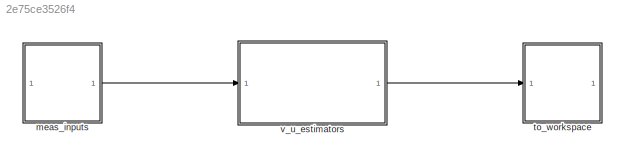
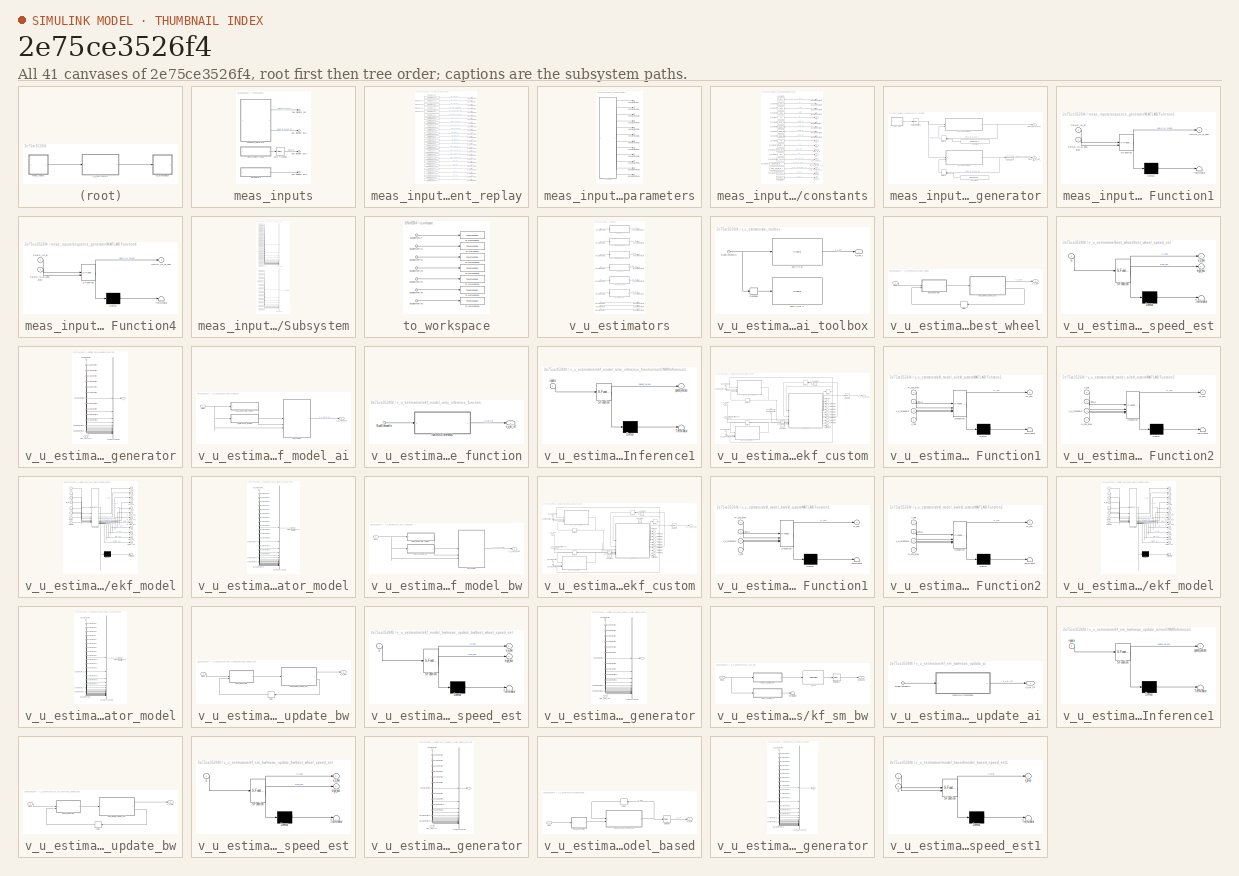
[diagram: thumbnail index - all 41 canvases of the model, root first then tree order]
MODEL slx_2e75ce3526f4
KIND model
CONFIG AbsTol = auto
CONFIG EnableMultiTasking = off
CONFIG FixedStep = 0.002
CONFIG MaxStep = auto
CONFIG MinStep = auto
CONFIG RelTol = 1e-3
CONFIG SampleTimeConstraint = Unconstrained
CONFIG SolverName = ode4
CONFIG StartTime = 0.0
CONFIG StopTime = T
BLOCK [SubSystem] meas_inputs
BLOCK [Outport] meas_inputs/Bus Element Out
BLOCK [Outport] meas_inputs/Bus Element Out1
BLOCK [Outport] meas_inputs/Bus Element Out2
BLOCK [Outport] meas_inputs/Bus Element Out3
BLOCK [RateTransition] meas_inputs/Rate Transition
  OutPortSampleTime = 0.01
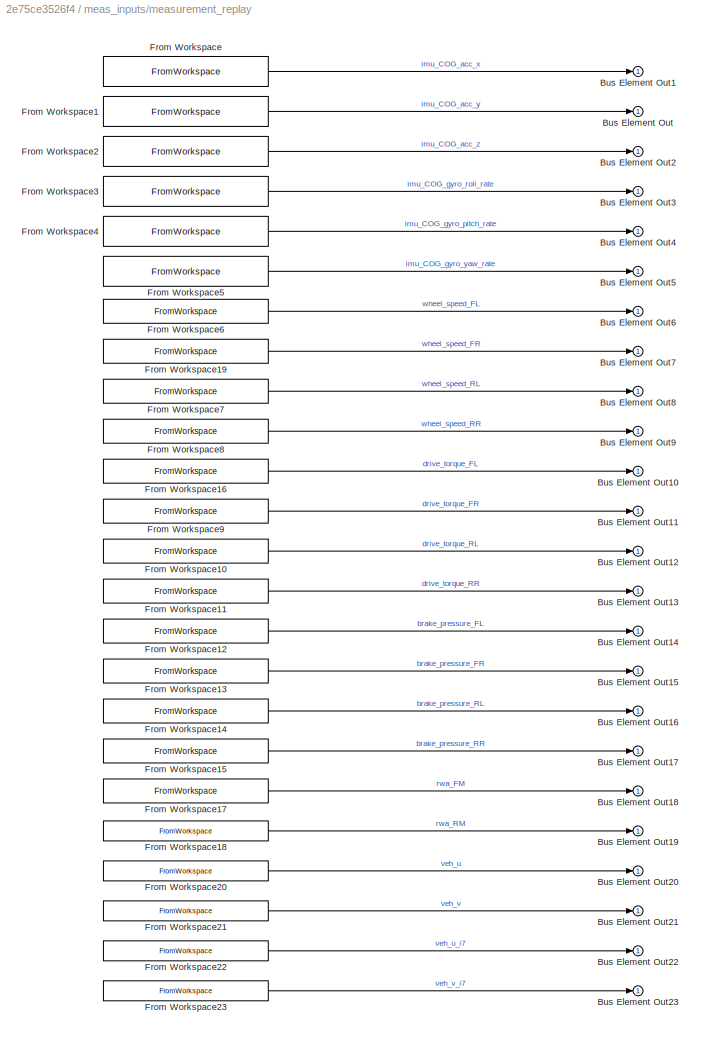
BLOCK [SubSystem] meas_inputs/measurement_replay
BLOCK [Outport] meas_inputs/measurement_replay/Bus Element Out
BLOCK [Outport] meas_inputs/measurement_replay/Bus Element Out1
BLOCK [Outport] meas_inputs/measurement_replay/Bus Element Out10
BLOCK [Outport] meas_inputs/measurement_replay/Bus Element Out11
BLOCK [Outport] meas_inputs/measurement_replay/Bus Element Out12
BLOCK [Outport] meas_inputs/measurement_replay/Bus Element Out13
BLOCK [Outport] meas_inputs/measurement_replay/Bus Element Out14
BLOCK [Outport] meas_inputs/measurement_replay/Bus Element Out15
BLOCK [Outport] meas_inputs/measurement_replay/Bus Element Out16
BLOCK [Outport] meas_inputs/measurement_replay/Bus Element Out17
BLOCK [Outport] meas_inputs/measurement_replay/Bus Element Out18
BLOCK [Outport] meas_inputs/measurement_replay/Bus Element Out19
BLOCK [Outport] meas_inputs/measurement_replay/Bus Element Out2
BLOCK [Outport] meas_inputs/measurement_replay/Bus Element Out20
BLOCK [Outport] meas_inputs/measurement_replay/Bus Element Out21
BLOCK [Outport] meas_inputs/measurement_replay/Bus Element Out22
BLOCK [Outport] meas_inputs/measurement_replay/Bus Element Out23
BLOCK [Outport] meas_inputs/measurement_replay/Bus Element Out3
BLOCK [Outport] meas_inputs/measurement_replay/Bus Element Out4
BLOCK [Outport] meas_inputs/measurement_replay/Bus Element Out5
BLOCK [Outport] meas_inputs/measurement_replay/Bus Element Out6
BLOCK [Outport] meas_inputs/measurement_replay/Bus Element Out7
BLOCK [Outport] meas_inputs/measurement_replay/Bus Element Out8
BLOCK [Outport] meas_inputs/measurement_replay/Bus Element Out9
BLOCK [FromWorkspace] meas_inputs/measurement_replay/From Workspace
  VariableName = meas.time_table_100(:, 1)
BLOCK [FromWorkspace] meas_inputs/measurement_replay/From Workspace1
  VariableName = meas.time_table_100(:, 2)
BLOCK [FromWorkspace] meas_inputs/measurement_replay/From Workspace10
  VariableName = meas.time_table_100(:, 13)
BLOCK [FromWorkspace] meas_inputs/measurement_replay/From Workspace11
  VariableName = meas.time_table_100(:, 14)
BLOCK [FromWorkspace] meas_inputs/measurement_replay/From Workspace12
  VariableName = meas.time_table_100(:, 15)
BLOCK [FromWorkspace] meas_inputs/measurement_replay/From Workspace13
  VariableName = meas.time_table_100(:, 16)
BLOCK [FromWorkspace] meas_inputs/measurement_replay/From Workspace14
  VariableName = meas.time_table_100(:, 17)
BLOCK [FromWorkspace] meas_inputs/measurement_replay/From Workspace15
  VariableName = meas.time_table_100(:, 18)
BLOCK [FromWorkspace] meas_inputs/measurement_replay/From Workspace16
  VariableName = meas.time_table_100(:, 11)
BLOCK [FromWorkspace] meas_inputs/measurement_replay/From Workspace17
  VariableName = meas.time_table_100(:, 19)
BLOCK [FromWorkspace] meas_inputs/measurement_replay/From Workspace18
  VariableName = meas.time_table_100(:, 20)
BLOCK [FromWorkspace] meas_inputs/measurement_replay/From Workspace19
  VariableName = meas.time_table_100(:, 8)
BLOCK [FromWorkspace] meas_inputs/measurement_replay/From Workspace2
  VariableName = meas.time_table_100(:, 3)
BLOCK [FromWorkspace] meas_inputs/measurement_replay/From Workspace20
  VariableName = meas.time_table_100(:, 21)
BLOCK [FromWorkspace] meas_inputs/measurement_replay/From Workspace21
  VariableName = meas.time_table_100(:, 22)
BLOCK [FromWorkspace] meas_inputs/measurement_replay/From Workspace22
  VariableName = meas.time_table_100(:, 23)
BLOCK [FromWorkspace] meas_inputs/measurement_replay/From Workspace23
  VariableName = meas.time_table_100(:, 24)
BLOCK [FromWorkspace] meas_inputs/measurement_replay/From Workspace3
  VariableName = meas.time_table_100(:, 4)
BLOCK [FromWorkspace] meas_inputs/measurement_replay/From Workspace4
  VariableName = meas.time_table_100(:, 5)
BLOCK [FromWorkspace] meas_inputs/measurement_replay/From Workspace5
  VariableName = meas.time_table_100(:, 6)
BLOCK [FromWorkspace] meas_inputs/measurement_replay/From Workspace6
  VariableName = meas.time_table_100(:, 7)
BLOCK [FromWorkspace] meas_inputs/measurement_replay/From Workspace7
  VariableName = meas.time_table_100(:, 9)
BLOCK [FromWorkspace] meas_inputs/measurement_replay/From Workspace8
  VariableName = meas.time_table_100(:, 10)
BLOCK [FromWorkspace] meas_inputs/measurement_replay/From Workspace9
  VariableName = meas.time_table_100(:, 12)
BLOCK [SubSystem] meas_inputs/parameters
BLOCK [Outport] meas_inputs/parameters/Bus Element Out
BLOCK [Outport] meas_inputs/parameters/Bus Element Out1
BLOCK [Outport] meas_inputs/parameters/Bus Element Out10
BLOCK [Outport] meas_inputs/parameters/Bus Element Out11
BLOCK [Outport] meas_inputs/parameters/Bus Element Out2
BLOCK [Outport] meas_inputs/parameters/Bus Element Out3
BLOCK [Outport] meas_inputs/parameters/Bus Element Out4
BLOCK [Outport] meas_inputs/parameters/Bus Element Out5
BLOCK [Outport] meas_inputs/parameters/Bus Element Out6
BLOCK [Outport] meas_inputs/parameters/Bus Element Out7
BLOCK [Outport] meas_inputs/parameters/Bus Element Out8
BLOCK [Outport] meas_inputs/parameters/Bus Element Out9
BLOCK [SubSystem] meas_inputs/parameters/constants
BLOCK [Outport] meas_inputs/parameters/constants/Bus Element Out
  Port = 5
BLOCK [Outport] meas_inputs/parameters/constants/Bus Element Out1
  Port = 5
BLOCK [Outport] meas_inputs/parameters/constants/Bus Element Out2
  Port = 5
BLOCK [Outport] meas_inputs/parameters/constants/Bus Element Out3
  Port = 5
BLOCK [Outport] meas_inputs/parameters/constants/Bus Element Out4
  Port = 3
BLOCK [Outport] meas_inputs/parameters/constants/Bus Element Out5
  Port = 3
BLOCK [Outport] meas_inputs/parameters/constants/Bus Element Out6
  Port = 3
BLOCK [Outport] meas_inputs/parameters/constants/Bus Element Out7
  Port = 3
BLOCK [Constant] meas_inputs/parameters/constants/Constant
  Value = R
BLOCK [Constant] meas_inputs/parameters/constants/Constant1
  Value = c_lon_f
BLOCK [Constant] meas_inputs/parameters/constants/Constant10
  Value = theta_z
BLOCK [Constant] meas_inputs/parameters/constants/Constant11
  Value = eps_m_v
BLOCK [Constant] meas_inputs/parameters/constants/Constant12
  Value = dt
BLOCK [Constant] meas_inputs/parameters/constants/Constant13
  Value = eps_bw_acc
BLOCK [Constant] meas_inputs/parameters/constants/Constant14
  Value = thr_ekf_m_bw_v_u
BLOCK [Constant] meas_inputs/parameters/constants/Constant15
  Value = eps_ekf_m_bw_v_u
BLOCK [Constant] meas_inputs/parameters/constants/Constant16
  Value = R_ekf_1
BLOCK [Constant] meas_inputs/parameters/constants/Constant17
  Value = Q_ekf_1
BLOCK [Constant] meas_inputs/parameters/constants/Constant2
  Value = c_lon_r
BLOCK [Constant] meas_inputs/parameters/constants/Constant3
  Value = c_lat_f
BLOCK [Constant] meas_inputs/parameters/constants/Constant4
  Value = c_lat_r
BLOCK [Constant] meas_inputs/parameters/constants/Constant5
  Value = r_COG_FL
BLOCK [Constant] meas_inputs/parameters/constants/Constant6
  Value = r_COG_FR
BLOCK [Constant] meas_inputs/parameters/constants/Constant7
  Value = r_COG_RL
BLOCK [Constant] meas_inputs/parameters/constants/Constant8
  Value = r_COG_RR
BLOCK [Constant] meas_inputs/parameters/constants/Constant9
  Value = m
BLOCK [Outport] meas_inputs/parameters/constants/I_z
  Port = 2
BLOCK [Outport] meas_inputs/parameters/constants/Q_ekf_1
  Port = 12
BLOCK [Outport] meas_inputs/parameters/constants/R
  Port = 4
BLOCK [Outport] meas_inputs/parameters/constants/R_ekf_1
  Port = 11
BLOCK [Outport] meas_inputs/parameters/constants/dt
  Port = 7
BLOCK [Outport] meas_inputs/parameters/constants/eps_bw_acc
  Port = 8
BLOCK [Outport] meas_inputs/parameters/constants/eps_ekf_m_bw_v_u
  Port = 10
BLOCK [Outport] meas_inputs/parameters/constants/eps_m_v
  Port = 6
BLOCK [Outport] meas_inputs/parameters/constants/m
BLOCK [Outport] meas_inputs/parameters/constants/thr_ekf_m_bw_v_u
  Port = 9
BLOCK [SubSystem] meas_inputs/sequence_generator
BLOCK [Constant] meas_inputs/sequence_generator/Constant1
  NameLocation = top
  Value = zeros(num_of_signals, sequence_length)
BLOCK [Constant] meas_inputs/sequence_generator/Constant2
  NameLocation = top
  Value = zeros(sequence_length, num_of_signals)
BLOCK [Delay] meas_inputs/sequence_generator/Delay1
  DelayLength = 1
  InitialConditionSource = Input port
  InputPortMap = u0,p4
  NameLocation = top
BLOCK [Delay] meas_inputs/sequence_generator/Delay2
  DelayLength = 1
  InitialConditionSource = Input port
  InputPortMap = u0,p4
  NameLocation = top
BLOCK [SubSystem] meas_inputs/sequence_generator/MATLAB Function1
  ErrorFcn = Stateflow.Translate.translate
  PermitHierarchicalResolution = ExplicitOnly
  SFBlockType = MATLAB Function
  TreatAsAtomicUnit = on
BLOCK [Demux] meas_inputs/sequence_generator/MATLAB Function1/ Demux 
  Outputs = 1
BLOCK [S-Function] meas_inputs/sequence_generator/MATLAB Function1/ SFunction 
  EnableBusSupport = on
  FunctionName = sf_sfun
  PortCounts = [2 2]
  SFcnIsStateOwnerBlock = off
  SFunctionDeploymentMode = off
  Tag = Stateflow S-Function 12
BLOCK [Terminator] meas_inputs/sequence_generator/MATLAB Function1/ Terminator 
BLOCK [Inport] meas_inputs/sequence_generator/MATLAB Function1/SENS_IN_ai
BLOCK [Outport] meas_inputs/sequence_generator/MATLAB Function1/SENS_IN_ai_seq
BLOCK [Inport] meas_inputs/sequence_generator/MATLAB Function1/SENS_IN_ai_seq_prev
  Port = 2
BLOCK [SubSystem] meas_inputs/sequence_generator/MATLAB Function4
  ErrorFcn = Stateflow.Translate.translate
  PermitHierarchicalResolution = ExplicitOnly
  SFBlockType = MATLAB Function
  TreatAsAtomicUnit = on
BLOCK [Demux] meas_inputs/sequence_generator/MATLAB Function4/ Demux 
  Outputs = 1
BLOCK [S-Function] meas_inputs/sequence_generator/MATLAB Function4/ SFunction 
  EnableBusSupport = on
  FunctionName = sf_sfun
  PortCounts = [2 2]
  SFcnIsStateOwnerBlock = off
  SFunctionDeploymentMode = off
  Tag = Stateflow S-Function 3
BLOCK [Terminator] meas_inputs/sequence_generator/MATLAB Function4/ Terminator 
BLOCK [Outport] meas_inputs/sequence_generator/MATLAB Function4/SENS_IN_ai_seq
BLOCK [Inport] meas_inputs/sequence_generator/MATLAB Function4/SENS_IN_ai_seq_prev
  Port = 2
BLOCK [Inport] meas_inputs/sequence_generator/MATLAB Function4/SNES_IN_ai
BLOCK [RateTransition] meas_inputs/sequence_generator/Rate Transition1
  OutPortSampleTime = 0.01
BLOCK [Reshape] meas_inputs/sequence_generator/Reshape
  OutputDimensionality = Customize
  OutputDimensions = [1, sequence_length, num_of_signals]
BLOCK [Outport] meas_inputs/sequence_generator/SENS_IN_ai_seq_inf
  Port = 2
BLOCK [Outport] meas_inputs/sequence_generator/SENS_IN_ai_seq_t
BLOCK [SubSystem] meas_inputs/sequence_generator/Subsystem
BLOCK [FromWorkspace] meas_inputs/sequence_generator/Subsystem/From Workspace
  Commented = on
  VariableName = time_table_100(:,1)
BLOCK [FromWorkspace] meas_inputs/sequence_generator/Subsystem/From Workspace1
  Commented = on
  VariableName = time_table_100(:,2)
BLOCK [FromWorkspace] meas_inputs/sequence_generator/Subsystem/From Workspace10
  Commented = on
  VariableName = time_table_100(:,13)
BLOCK [FromWorkspace] meas_inputs/sequence_generator/Subsystem/From Workspace11
  Commented = on
  VariableName = time_table_100(:,14)
BLOCK [FromWorkspace] meas_inputs/sequence_generator/Subsystem/From Workspace12
  Commented = on
  VariableName = time_table_100(:,15)
BLOCK [FromWorkspace] meas_inputs/sequence_generator/Subsystem/From Workspace13
  Commented = on
  VariableName = time_table_100(:,16)
BLOCK [FromWorkspace] meas_inputs/sequence_generator/Subsystem/From Workspace14
  Commented = on
  VariableName = time_table_100(:,17)
BLOCK [FromWorkspace] meas_inputs/sequence_generator/Subsystem/From Workspace15
  Commented = on
  VariableName = time_table_100(:,18)
BLOCK [FromWorkspace] meas_inputs/sequence_generator/Subsystem/From Workspace16
  Commented = on
  VariableName = time_table_100(:,11)
BLOCK [FromWorkspace] meas_inputs/sequence_generator/Subsystem/From Workspace17
  Commented = on
  VariableName = time_table_100(:,19)
BLOCK [FromWorkspace] meas_inputs/sequence_generator/Subsystem/From Workspace18
  Commented = on
  VariableName = time_table_100(:,20)
BLOCK [FromWorkspace] meas_inputs/sequence_generator/Subsystem/From Workspace19
  Commented = on
  VariableName = time_table_100(:,8)
BLOCK [FromWorkspace] meas_inputs/sequence_generator/Subsystem/From Workspace2
  Commented = on
  VariableName = time_table_100(:,3)
BLOCK [FromWorkspace] meas_inputs/sequence_generator/Subsystem/From Workspace20
  VariableName = meas_norm.time_table_100(:,1)
BLOCK [FromWorkspace] meas_inputs/sequence_generator/Subsystem/From Workspace21
  VariableName = meas_norm.time_table_100(:,2)
BLOCK [FromWorkspace] meas_inputs/sequence_generator/Subsystem/From Workspace22
  VariableName = meas_norm.time_table_100(:,13)
BLOCK [FromWorkspace] meas_inputs/sequence_generator/Subsystem/From Workspace24
  VariableName = meas_norm.time_table_100(:,15)
BLOCK [FromWorkspace] meas_inputs/sequence_generator/Subsystem/From Workspace26
  VariableName = meas_norm.time_table_100(:,17)
BLOCK [FromWorkspace] meas_inputs/sequence_generator/Subsystem/From Workspace28
  VariableName = meas_norm.time_table_100(:,11)
BLOCK [FromWorkspace] meas_inputs/sequence_generator/Subsystem/From Workspace29
  VariableName = meas_norm.time_table_100(:,19)
BLOCK [FromWorkspace] meas_inputs/sequence_generator/Subsystem/From Workspace3
  Commented = on
  VariableName = time_table_100(:,4)
BLOCK [FromWorkspace] meas_inputs/sequence_generator/Subsystem/From Workspace31
  VariableName = meas_norm.time_table_100(:,8)
BLOCK [FromWorkspace] meas_inputs/sequence_generator/Subsystem/From Workspace35
  VariableName = meas_norm.time_table_100(:,6)
BLOCK [FromWorkspace] meas_inputs/sequence_generator/Subsystem/From Workspace36
  VariableName = meas_norm.time_table_100(:,7)
BLOCK [FromWorkspace] meas_inputs/sequence_generator/Subsystem/From Workspace37
  VariableName = meas_norm.time_table_100(:,9)
BLOCK [FromWorkspace] meas_inputs/sequence_generator/Subsystem/From Workspace38
  VariableName = meas_norm.time_table_100(:,10)
BLOCK [FromWorkspace] meas_inputs/sequence_generator/Subsystem/From Workspace4
  Commented = on
  VariableName = time_table_100(:,5)
BLOCK [FromWorkspace] meas_inputs/sequence_generator/Subsystem/From Workspace5
  Commented = on
  VariableName = time_table_100(:,6)
BLOCK [FromWorkspace] meas_inputs/sequence_generator/Subsystem/From Workspace6
  Commented = on
  VariableName = time_table_100(:,7)
BLOCK [FromWorkspace] meas_inputs/sequence_generator/Subsystem/From Workspace7
  Commented = on
  VariableName = time_table_100(:,9)
BLOCK [FromWorkspace] meas_inputs/sequence_generator/Subsystem/From Workspace8
  Commented = on
  VariableName = time_table_100(:,10)
BLOCK [FromWorkspace] meas_inputs/sequence_generator/Subsystem/From Workspace9
  Commented = on
  VariableName = time_table_100(:,12)
BLOCK [Outport] meas_inputs/sequence_generator/Subsystem/SENS_IN_ai
BLOCK [Concatenate] meas_inputs/sequence_generator/Subsystem/Vector Concatenate
  Commented = on
  NumInputs = 20
BLOCK [Concatenate] meas_inputs/sequence_generator/Subsystem/Vector Concatenate1
  NumInputs = 12
BLOCK [SubSystem] to_workspace
BLOCK [Inport] to_workspace/BusElementIn
BLOCK [Inport] to_workspace/BusElementIn1
BLOCK [Inport] to_workspace/BusElementIn2
BLOCK [Inport] to_workspace/BusElementIn3
BLOCK [Inport] to_workspace/BusElementIn4
BLOCK [Inport] to_workspace/BusElementIn5
BLOCK [Inport] to_workspace/BusElementIn6
BLOCK [ToWorkspace] to_workspace/To Workspace
  FixptAsFi = on
  MaxDataPoints = inf
  SampleTime = -1
  SaveFormat = Timeseries
  VariableName = model_based
BLOCK [ToWorkspace] to_workspace/To Workspace1
  FixptAsFi = on
  MaxDataPoints = inf
  SampleTime = -1
  SaveFormat = Timeseries
  VariableName = best_wheel
BLOCK [ToWorkspace] to_workspace/To Workspace2
  FixptAsFi = on
  MaxDataPoints = inf
  SampleTime = -1
  SaveFormat = Timeseries
  VariableName = veh_ref
BLOCK [ToWorkspace] to_workspace/To Workspace3
  FixptAsFi = on
  MaxDataPoints = inf
  SampleTime = -1
  SaveFormat = Timeseries
  VariableName = ekf_m_bw
BLOCK [ToWorkspace] to_workspace/To Workspace4
  FixptAsFi = on
  MaxDataPoints = inf
  SampleTime = -1
  SaveFormat = Timeseries
  VariableName = veh_u
BLOCK [ToWorkspace] to_workspace/To Workspace5
  FixptAsFi = on
  MaxDataPoints = inf
  SampleTime = -1
  SaveFormat = Timeseries
  VariableName = veh_v
BLOCK [ToWorkspace] to_workspace/To Workspace6
  FixptAsFi = on
  MaxDataPoints = inf
  SampleTime = -1
  SaveFormat = Timeseries
  VariableName = ekf_ai
BLOCK [SubSystem] v_u_estimators
BLOCK [Inport] v_u_estimators/Bus Element In
BLOCK [Inport] v_u_estimators/Bus Element In2
BLOCK [Inport] v_u_estimators/Bus Element In3
BLOCK [Inport] v_u_estimators/Bus Element In4
BLOCK [Inport] v_u_estimators/Bus Element In5
BLOCK [Inport] v_u_estimators/Bus Element In6
BLOCK [Outport] v_u_estimators/Bus Element Out
BLOCK [Outport] v_u_estimators/Bus Element Out1
BLOCK [Outport] v_u_estimators/Bus Element Out11
BLOCK [Outport] v_u_estimators/Bus Element Out2
BLOCK [Outport] v_u_estimators/Bus Element Out3
BLOCK [Outport] v_u_estimators/Bus Element Out5
BLOCK [Outport] v_u_estimators/Bus Element Out7
BLOCK [Outport] v_u_estimators/Bus Element Out8
BLOCK [Outport] v_u_estimators/Bus Element Out9
BLOCK [Inport] v_u_estimators/BusElementIn
BLOCK [Inport] v_u_estimators/BusElementIn1
BLOCK [Inport] v_u_estimators/BusElementIn2
BLOCK [SubSystem] v_u_estimators/ai_toolbox
BLOCK [Inport] v_u_estimators/ai_toolbox/BusElementIn
BLOCK [Reshape] v_u_estimators/ai_toolbox/Reshape
  Commented = on
  OutputDimensionality = Customize
  OutputDimensions = [1,sequence_length, num_of_signals]
BLOCK [Reference] v_u_estimators/ai_toolbox/built-in ai   REF=deeplib/Predict
  SourceBlock = deeplib/Predict
  SourceType = Predict
BLOCK [Reference] v_u_estimators/ai_toolbox/built-in ai 1  REF=deeplib/Predict
  Commented = on
  SourceBlock = deeplib/Predict
  SourceType = Predict
BLOCK [Outport] v_u_estimators/ai_toolbox/v_u_ai_t
BLOCK [SubSystem] v_u_estimators/best_wheel
BLOCK [Delay] v_u_estimators/best_wheel/Delay
  DelayLength = 1
  InputPortMap = u0
  NameLocation = top
BLOCK [SubSystem] v_u_estimators/best_wheel/best_wheel_speed_est
  ErrorFcn = Stateflow.Translate.translate
  PermitHierarchicalResolution = ExplicitOnly
  SFBlockType = MATLAB Function
  TreatAsAtomicUnit = on
BLOCK [Demux] v_u_estimators/best_wheel/best_wheel_speed_est/ Demux 
  Outputs = 1
BLOCK [S-Function] v_u_estimators/best_wheel/best_wheel_speed_est/ SFunction 
  EnableBusSupport = on
  FunctionName = sf_sfun
  PortCounts = [1 3]
  SFcnIsStateOwnerBlock = off
  SFunctionDeploymentMode = off
  Tag = Stateflow S-Function 1
BLOCK [Terminator] v_u_estimators/best_wheel/best_wheel_speed_est/ Terminator 
BLOCK [Outport] v_u_estimators/best_wheel/best_wheel_speed_est/sign_acc
  Port = 2
BLOCK [Inport] v_u_estimators/best_wheel/best_wheel_speed_est/u
BLOCK [Outport] v_u_estimators/best_wheel/best_wheel_speed_est/v_u_bw
BLOCK [SubSystem] v_u_estimators/best_wheel/input_generator
BLOCK [Inport] v_u_estimators/best_wheel/input_generator/BusElementIn
BLOCK [Inport] v_u_estimators/best_wheel/input_generator/BusElementIn1
BLOCK [Inport] v_u_estimators/best_wheel/input_generator/BusElementIn10
BLOCK [Inport] v_u_estimators/best_wheel/input_generator/BusElementIn11
BLOCK [Inport] v_u_estimators/best_wheel/input_generator/BusElementIn12
BLOCK [Inport] v_u_estimators/best_wheel/input_generator/BusElementIn13
BLOCK [Inport] v_u_estimators/best_wheel/input_generator/BusElementIn2
BLOCK [Inport] v_u_estimators/best_wheel/input_generator/BusElementIn3
BLOCK [Inport] v_u_estimators/best_wheel/input_generator/BusElementIn4
BLOCK [Inport] v_u_estimators/best_wheel/input_generator/BusElementIn5
BLOCK [Inport] v_u_estimators/best_wheel/input_generator/BusElementIn6
BLOCK [Inport] v_u_estimators/best_wheel/input_generator/BusElementIn7
BLOCK [Inport] v_u_estimators/best_wheel/input_generator/BusElementIn8
BLOCK [Inport] v_u_estimators/best_wheel/input_generator/BusElementIn9
BLOCK [Concatenate] v_u_estimators/best_wheel/input_generator/Vector Concatenate
  NumInputs = 15
BLOCK [Inport] v_u_estimators/best_wheel/input_generator/prev_sign_acc
  Port = 2
BLOCK [Outport] v_u_estimators/best_wheel/input_generator/u
BLOCK [Inport] v_u_estimators/best_wheel/meas
BLOCK [Outport] v_u_estimators/best_wheel/v_u_bw
BLOCK [SubSystem] v_u_estimators/ekf_model_ai
BLOCK [SubSystem] v_u_estimators/ekf_model_ai/ai_inference_function
BLOCK [Inport] v_u_estimators/ekf_model_ai/ai_inference_function/BusElementIn
BLOCK [SubSystem] v_u_estimators/ekf_model_ai/ai_inference_function/runONNXInference1
  ErrorFcn = Stateflow.Translate.translate
  LibrarySourceBlock = simulink/User-Defined\nFunctions/MATLAB Function
  PermitHierarchicalResolution = ExplicitOnly
  SFBlockType = MATLAB Function
  TreatAsAtomicUnit = on
BLOCK [Demux] v_u_estimators/ekf_model_ai/ai_inference_function/runONNXInference1/ Demux 
  Outputs = 1
BLOCK [S-Function] v_u_estimators/ekf_model_ai/ai_inference_function/runONNXInference1/ SFunction 
  EnableBusSupport = on
  FunctionName = sf_sfun
  PortCounts = [1 2]
  SFcnIsStateOwnerBlock = off
  SFunctionDeploymentMode = off
  Tag = Stateflow S-Function 24
BLOCK [Terminator] v_u_estimators/ekf_model_ai/ai_inference_function/runONNXInference1/ Terminator 
BLOCK [Inport] v_u_estimators/ekf_model_ai/ai_inference_function/runONNXInference1/inputs
BLOCK [Outport] v_u_estimators/ekf_model_ai/ai_inference_function/runONNXInference1/speed_values
BLOCK [Outport] v_u_estimators/ekf_model_ai/ai_inference_function/v_u_ai_inf
BLOCK [SubSystem] v_u_estimators/ekf_model_ai/ekf_custom
BLOCK [Inport] v_u_estimators/ekf_model_ai/ekf_custom/BusElementIn
  Port = 3
BLOCK [Inport] v_u_estimators/ekf_model_ai/ekf_custom/BusElementIn1
  Port = 3
BLOCK [Inport] v_u_estimators/ekf_model_ai/ekf_custom/BusElementIn2
  Port = 3
BLOCK [Inport] v_u_estimators/ekf_model_ai/ekf_custom/BusElementIn3
  Port = 3
BLOCK [Inport] v_u_estimators/ekf_model_ai/ekf_custom/BusElementIn5
  Port = 3
BLOCK [Inport] v_u_estimators/ekf_model_ai/ekf_custom/BusElementIn6
  Port = 3
BLOCK [Constant] v_u_estimators/ekf_model_ai/ekf_custom/Constant2
  Value = 6.63
BLOCK [Constant] v_u_estimators/ekf_model_ai/ekf_custom/Constant3
  Value = 1e-5
BLOCK [Constant] v_u_estimators/ekf_model_ai/ekf_custom/Constant4
  NameLocation = top
  Value = P0
BLOCK [Delay] v_u_estimators/ekf_model_ai/ekf_custom/Delay
  DelayLength = 1
  InitialCondition = [0.0001; 0.0001; 0.0001]
  InputPortMap = u0
BLOCK [Delay] v_u_estimators/ekf_model_ai/ekf_custom/Delay1
  DelayLength = 1
  InitialCondition = diag([1e-10, 1e-10, 1e-10]);
  InitialConditionSource = Input port
  InputPortMap = u0,p4
  NameLocation = top
BLOCK [Delay] v_u_estimators/ekf_model_ai/ekf_custom/Delay2
  DelayLength = 1
  InputPortMap = u0
  NameLocation = top
BLOCK [Delay] v_u_estimators/ekf_model_ai/ekf_custom/Delay3
  DelayLength = 1
  InputPortMap = u0
  NameLocation = top
BLOCK [SubSystem] v_u_estimators/ekf_model_ai/ekf_custom/MATLAB Function1
  ErrorFcn = Stateflow.Translate.translate
  PermitHierarchicalResolution = ExplicitOnly
  SFBlockType = MATLAB Function
  TreatAsAtomicUnit = on
BLOCK [Demux] v_u_estimators/ekf_model_ai/ekf_custom/MATLAB Function1/ Demux 
  Outputs = 1
BLOCK [S-Function] v_u_estimators/ekf_model_ai/ekf_custom/MATLAB Function1/ SFunction 
  EnableBusSupport = on
  FunctionName = sf_sfun
  PortCounts = [4 2]
  SFcnIsStateOwnerBlock = off
  SFunctionDeploymentMode = off
  Tag = Stateflow S-Function 2
BLOCK [Terminator] v_u_estimators/ekf_model_ai/ekf_custom/MATLAB Function1/ Terminator 
BLOCK [Outport] v_u_estimators/ekf_model_ai/ekf_custom/MATLAB Function1/R_cov
BLOCK [Inport] v_u_estimators/ekf_model_ai/ekf_custom/MATLAB Function1/R_cov_prev
BLOCK [Inport] v_u_estimators/ekf_model_ai/ekf_custom/MATLAB Function1/eps_u
  Port = 2
BLOCK [Inport] v_u_estimators/ekf_model_ai/ekf_custom/MATLAB Function1/v_u_threshold
  Port = 3
BLOCK [Inport] v_u_estimators/ekf_model_ai/ekf_custom/MATLAB Function1/x_hat
  Port = 4
BLOCK [SubSystem] v_u_estimators/ekf_model_ai/ekf_custom/MATLAB Function2
  ErrorFcn = Stateflow.Translate.translate
  PermitHierarchicalResolution = ExplicitOnly
  SFBlockType = MATLAB Function
  TreatAsAtomicUnit = on
BLOCK [Demux] v_u_estimators/ekf_model_ai/ekf_custom/MATLAB Function2/ Demux 
  Outputs = 1
BLOCK [S-Function] v_u_estimators/ekf_model_ai/ekf_custom/MATLAB Function2/ SFunction 
  EnableBusSupport = on
  FunctionName = sf_sfun
  PortCounts = [4 2]
  SFcnIsStateOwnerBlock = off
  SFunctionDeploymentMode = off
  Tag = Stateflow S-Function 8
BLOCK [Terminator] v_u_estimators/ekf_model_ai/ekf_custom/MATLAB Function2/ Terminator 
BLOCK [Outport] v_u_estimators/ekf_model_ai/ekf_custom/MATLAB Function2/Q_cov
BLOCK [Inport] v_u_estimators/ekf_model_ai/ekf_custom/MATLAB Function2/Q_cov_prev
  Port = 4
BLOCK [Inport] v_u_estimators/ekf_model_ai/ekf_custom/MATLAB Function2/eps_u
  Port = 2
BLOCK [Inport] v_u_estimators/ekf_model_ai/ekf_custom/MATLAB Function2/v_u_threshold
  Port = 3
BLOCK [Inport] v_u_estimators/ekf_model_ai/ekf_custom/MATLAB Function2/x_hat
BLOCK [Selector] v_u_estimators/ekf_model_ai/ekf_custom/Selector
  IndexOptions = Index vector (dialog)
  Indices = [1]
  InputPortWidth = 3
  OutputSizes = 1
BLOCK [Inport] v_u_estimators/ekf_model_ai/ekf_custom/StateTransitionFcnInputs
BLOCK [Terminator] v_u_estimators/ekf_model_ai/ekf_custom/Terminator
BLOCK [Terminator] v_u_estimators/ekf_model_ai/ekf_custom/Terminator1
BLOCK [Terminator] v_u_estimators/ekf_model_ai/ekf_custom/Terminator2
BLOCK [Terminator] v_u_estimators/ekf_model_ai/ekf_custom/Terminator3
BLOCK [Terminator] v_u_estimators/ekf_model_ai/ekf_custom/Terminator4
BLOCK [Terminator] v_u_estimators/ekf_model_ai/ekf_custom/Terminator5
BLOCK [Terminator] v_u_estimators/ekf_model_ai/ekf_custom/Terminator6
BLOCK [Terminator] v_u_estimators/ekf_model_ai/ekf_custom/Terminator7
BLOCK [Terminator] v_u_estimators/ekf_model_ai/ekf_custom/Terminator8
BLOCK [Terminator] v_u_estimators/ekf_model_ai/ekf_custom/Terminator9
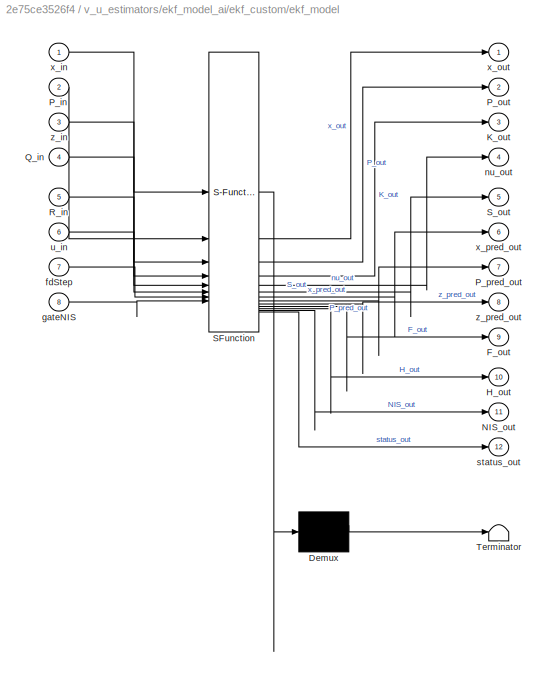
BLOCK [SubSystem] v_u_estimators/ekf_model_ai/ekf_custom/ekf_model
  ErrorFcn = Stateflow.Translate.translate
  PermitHierarchicalResolution = ExplicitOnly
  SFBlockType = MATLAB Function
  TreatAsAtomicUnit = on
BLOCK [Demux] v_u_estimators/ekf_model_ai/ekf_custom/ekf_model/ Demux 
  Outputs = 1
BLOCK [S-Function] v_u_estimators/ekf_model_ai/ekf_custom/ekf_model/ SFunction 
  EnableBusSupport = on
  FunctionName = sf_sfun
  PortCounts = [8 13]
  SFcnIsStateOwnerBlock = off
  SFunctionDeploymentMode = off
  Tag = Stateflow S-Function 9
BLOCK [Terminator] v_u_estimators/ekf_model_ai/ekf_custom/ekf_model/ Terminator 
BLOCK [Outport] v_u_estimators/ekf_model_ai/ekf_custom/ekf_model/F_out
  Port = 9
BLOCK [Outport] v_u_estimators/ekf_model_ai/ekf_custom/ekf_model/H_out
  Port = 10
BLOCK [Outport] v_u_estimators/ekf_model_ai/ekf_custom/ekf_model/K_out
  Port = 3
BLOCK [Outport] v_u_estimators/ekf_model_ai/ekf_custom/ekf_model/NIS_out
  Port = 11
BLOCK [Inport] v_u_estimators/ekf_model_ai/ekf_custom/ekf_model/P_in
  Port = 2
BLOCK [Outport] v_u_estimators/ekf_model_ai/ekf_custom/ekf_model/P_out
  Port = 2
BLOCK [Outport] v_u_estimators/ekf_model_ai/ekf_custom/ekf_model/P_pred_out
  Port = 7
BLOCK [Inport] v_u_estimators/ekf_model_ai/ekf_custom/ekf_model/Q_in
  Port = 4
BLOCK [Inport] v_u_estimators/ekf_model_ai/ekf_custom/ekf_model/R_in
  Port = 5
BLOCK [Outport] v_u_estimators/ekf_model_ai/ekf_custom/ekf_model/S_out
  Port = 5
BLOCK [Inport] v_u_estimators/ekf_model_ai/ekf_custom/ekf_model/fdStep
  Port = 7
BLOCK [Inport] v_u_estimators/ekf_model_ai/ekf_custom/ekf_model/gateNIS
  Port = 8
BLOCK [Outport] v_u_estimators/ekf_model_ai/ekf_custom/ekf_model/nu_out
  Port = 4
BLOCK [Outport] v_u_estimators/ekf_model_ai/ekf_custom/ekf_model/status_out
  Port = 12
BLOCK [Inport] v_u_estimators/ekf_model_ai/ekf_custom/ekf_model/u_in
  Port = 6
BLOCK [Inport] v_u_estimators/ekf_model_ai/ekf_custom/ekf_model/x_in
BLOCK [Outport] v_u_estimators/ekf_model_ai/ekf_custom/ekf_model/x_out
BLOCK [Outport] v_u_estimators/ekf_model_ai/ekf_custom/ekf_model/x_pred_out
  Port = 6
BLOCK [Inport] v_u_estimators/ekf_model_ai/ekf_custom/ekf_model/z_in
  Port = 3
BLOCK [Outport] v_u_estimators/ekf_model_ai/ekf_custom/ekf_model/z_pred_out
  Port = 8
BLOCK [Inport] v_u_estimators/ekf_model_ai/ekf_custom/v_u_ai_inf
  Port = 2
BLOCK [Outport] v_u_estimators/ekf_model_ai/ekf_custom/v_u_ekf_m_bw
BLOCK [SubSystem] v_u_estimators/ekf_model_ai/input_generator_model
BLOCK [Inport] v_u_estimators/ekf_model_ai/input_generator_model/BusElementIn
BLOCK [Inport] v_u_estimators/ekf_model_ai/input_generator_model/BusElementIn1
BLOCK [Inport] v_u_estimators/ekf_model_ai/input_generator_model/BusElementIn10
BLOCK [Inport] v_u_estimators/ekf_model_ai/input_generator_model/BusElementIn11
BLOCK [Inport] v_u_estimators/ekf_model_ai/input_generator_model/BusElementIn12
BLOCK [Inport] v_u_estimators/ekf_model_ai/input_generator_model/BusElementIn13
BLOCK [Inport] v_u_estimators/ekf_model_ai/input_generator_model/BusElementIn14
BLOCK [Inport] v_u_estimators/ekf_model_ai/input_generator_model/BusElementIn15
BLOCK [Inport] v_u_estimators/ekf_model_ai/input_generator_model/BusElementIn16
BLOCK [Inport] v_u_estimators/ekf_model_ai/input_generator_model/BusElementIn17
BLOCK [Inport] v_u_estimators/ekf_model_ai/input_generator_model/BusElementIn18
BLOCK [Inport] v_u_estimators/ekf_model_ai/input_generator_model/BusElementIn19
BLOCK [Inport] v_u_estimators/ekf_model_ai/input_generator_model/BusElementIn2
BLOCK [Inport] v_u_estimators/ekf_model_ai/input_generator_model/BusElementIn3
BLOCK [Inport] v_u_estimators/ekf_model_ai/input_generator_model/BusElementIn4
BLOCK [Inport] v_u_estimators/ekf_model_ai/input_generator_model/BusElementIn5
BLOCK [Inport] v_u_estimators/ekf_model_ai/input_generator_model/BusElementIn6
BLOCK [Inport] v_u_estimators/ekf_model_ai/input_generator_model/BusElementIn7
BLOCK [Inport] v_u_estimators/ekf_model_ai/input_generator_model/BusElementIn8
BLOCK [Inport] v_u_estimators/ekf_model_ai/input_generator_model/BusElementIn9
BLOCK [Outport] v_u_estimators/ekf_model_ai/input_generator_model/StateTransitionFcnInputs
BLOCK [Concatenate] v_u_estimators/ekf_model_ai/input_generator_model/Vector Concatenate
  NumInputs = 20
BLOCK [Inport] v_u_estimators/ekf_model_ai/meas
BLOCK [Outport] v_u_estimators/ekf_model_ai/v_u_ekf_m_ai
BLOCK [SubSystem] v_u_estimators/ekf_model_bw
BLOCK [SubSystem] v_u_estimators/ekf_model_bw/ekf_custom
BLOCK [Inport] v_u_estimators/ekf_model_bw/ekf_custom/BusElementIn
  Port = 3
BLOCK [Inport] v_u_estimators/ekf_model_bw/ekf_custom/BusElementIn1
  Port = 3
BLOCK [Inport] v_u_estimators/ekf_model_bw/ekf_custom/BusElementIn2
  Port = 3
BLOCK [Inport] v_u_estimators/ekf_model_bw/ekf_custom/BusElementIn3
  Port = 3
BLOCK [Constant] v_u_estimators/ekf_model_bw/ekf_custom/Constant1
  Value = x0
BLOCK [Constant] v_u_estimators/ekf_model_bw/ekf_custom/Constant2
  Value = 6.63
BLOCK [Constant] v_u_estimators/ekf_model_bw/ekf_custom/Constant3
  Value = 1e-5
BLOCK [Constant] v_u_estimators/ekf_model_bw/ekf_custom/Constant4
  NameLocation = top
  Value = P0
BLOCK [Delay] v_u_estimators/ekf_model_bw/ekf_custom/Delay
  DelayLength = 1
  InitialCondition = [0.0001; 0.0001; 0.0001]
  InputPortMap = u0
BLOCK [Delay] v_u_estimators/ekf_model_bw/ekf_custom/Delay1
  DelayLength = 1
  InitialCondition = diag([1e-10, 1e-10, 1e-10]);
  InitialConditionSource = Input port
  InputPortMap = u0,p4
  NameLocation = top
BLOCK [Delay] v_u_estimators/ekf_model_bw/ekf_custom/Delay2
  DelayLength = 1
  InputPortMap = u0
  NameLocation = top
BLOCK [Delay] v_u_estimators/ekf_model_bw/ekf_custom/Delay3
  DelayLength = 1
  InputPortMap = u0
  NameLocation = top
BLOCK [SubSystem] v_u_estimators/ekf_model_bw/ekf_custom/MATLAB Function1
  ErrorFcn = Stateflow.Translate.translate
  PermitHierarchicalResolution = ExplicitOnly
  SFBlockType = MATLAB Function
  TreatAsAtomicUnit = on
BLOCK [Demux] v_u_estimators/ekf_model_bw/ekf_custom/MATLAB Function1/ Demux 
  Outputs = 1
BLOCK [S-Function] v_u_estimators/ekf_model_bw/ekf_custom/MATLAB Function1/ SFunction 
  EnableBusSupport = on
  FunctionName = sf_sfun
  PortCounts = [4 2]
  SFcnIsStateOwnerBlock = off
  SFunctionDeploymentMode = off
  Tag = Stateflow S-Function 23
BLOCK [Terminator] v_u_estimators/ekf_model_bw/ekf_custom/MATLAB Function1/ Terminator 
BLOCK [Outport] v_u_estimators/ekf_model_bw/ekf_custom/MATLAB Function1/R_cov
BLOCK [Inport] v_u_estimators/ekf_model_bw/ekf_custom/MATLAB Function1/R_cov_prev
BLOCK [Inport] v_u_estimators/ekf_model_bw/ekf_custom/MATLAB Function1/eps_u
  Port = 2
BLOCK [Inport] v_u_estimators/ekf_model_bw/ekf_custom/MATLAB Function1/v_u_threshold
  Port = 3
BLOCK [Inport] v_u_estimators/ekf_model_bw/ekf_custom/MATLAB Function1/x_hat
  Port = 4
BLOCK [SubSystem] v_u_estimators/ekf_model_bw/ekf_custom/MATLAB Function2
  ErrorFcn = Stateflow.Translate.translate
  PermitHierarchicalResolution = ExplicitOnly
  SFBlockType = MATLAB Function
  TreatAsAtomicUnit = on
BLOCK [Demux] v_u_estimators/ekf_model_bw/ekf_custom/MATLAB Function2/ Demux 
  Outputs = 1
BLOCK [S-Function] v_u_estimators/ekf_model_bw/ekf_custom/MATLAB Function2/ SFunction 
  EnableBusSupport = on
  FunctionName = sf_sfun
  PortCounts = [4 2]
  SFcnIsStateOwnerBlock = off
  SFunctionDeploymentMode = off
  Tag = Stateflow S-Function 22
BLOCK [Terminator] v_u_estimators/ekf_model_bw/ekf_custom/MATLAB Function2/ Terminator 
BLOCK [Outport] v_u_estimators/ekf_model_bw/ekf_custom/MATLAB Function2/Q_cov
BLOCK [Inport] v_u_estimators/ekf_model_bw/ekf_custom/MATLAB Function2/Q_cov_prev
  Port = 4
BLOCK [Inport] v_u_estimators/ekf_model_bw/ekf_custom/MATLAB Function2/eps_u
  Port = 2
BLOCK [Inport] v_u_estimators/ekf_model_bw/ekf_custom/MATLAB Function2/v_u_threshold
  Port = 3
BLOCK [Inport] v_u_estimators/ekf_model_bw/ekf_custom/MATLAB Function2/x_hat
BLOCK [Selector] v_u_estimators/ekf_model_bw/ekf_custom/Selector
  IndexOptions = Index vector (dialog)
  Indices = [1]
  InputPortWidth = 3
  OutputSizes = 1
BLOCK [Inport] v_u_estimators/ekf_model_bw/ekf_custom/StateTransitionFcnInputs
BLOCK [Terminator] v_u_estimators/ekf_model_bw/ekf_custom/Terminator
BLOCK [Terminator] v_u_estimators/ekf_model_bw/ekf_custom/Terminator1
BLOCK [Terminator] v_u_estimators/ekf_model_bw/ekf_custom/Terminator2
BLOCK [Terminator] v_u_estimators/ekf_model_bw/ekf_custom/Terminator3
BLOCK [Terminator] v_u_estimators/ekf_model_bw/ekf_custom/Terminator4
BLOCK [Terminator] v_u_estimators/ekf_model_bw/ekf_custom/Terminator5
BLOCK [Terminator] v_u_estimators/ekf_model_bw/ekf_custom/Terminator6
BLOCK [Terminator] v_u_estimators/ekf_model_bw/ekf_custom/Terminator7
BLOCK [Terminator] v_u_estimators/ekf_model_bw/ekf_custom/Terminator8
BLOCK [Terminator] v_u_estimators/ekf_model_bw/ekf_custom/Terminator9
BLOCK [SubSystem] v_u_estimators/ekf_model_bw/ekf_custom/ekf_model
  ErrorFcn = Stateflow.Translate.translate
  PermitHierarchicalResolution = ExplicitOnly
  SFBlockType = MATLAB Function
  TreatAsAtomicUnit = on
BLOCK [Demux] v_u_estimators/ekf_model_bw/ekf_custom/ekf_model/ Demux 
  Outputs = 1
BLOCK [S-Function] v_u_estimators/ekf_model_bw/ekf_custom/ekf_model/ SFunction 
  EnableBusSupport = on
  FunctionName = sf_sfun
  PortCounts = [8 13]
  SFcnIsStateOwnerBlock = off
  SFunctionDeploymentMode = off
  Tag = Stateflow S-Function 11
BLOCK [Terminator] v_u_estimators/ekf_model_bw/ekf_custom/ekf_model/ Terminator 
BLOCK [Outport] v_u_estimators/ekf_model_bw/ekf_custom/ekf_model/F_out
  Port = 9
BLOCK [Outport] v_u_estimators/ekf_model_bw/ekf_custom/ekf_model/H_out
  Port = 10
BLOCK [Outport] v_u_estimators/ekf_model_bw/ekf_custom/ekf_model/K_out
  Port = 3
BLOCK [Outport] v_u_estimators/ekf_model_bw/ekf_custom/ekf_model/NIS_out
  Port = 11
BLOCK [Inport] v_u_estimators/ekf_model_bw/ekf_custom/ekf_model/P_in
  Port = 2
BLOCK [Outport] v_u_estimators/ekf_model_bw/ekf_custom/ekf_model/P_out
  Port = 2
BLOCK [Outport] v_u_estimators/ekf_model_bw/ekf_custom/ekf_model/P_pred_out
  Port = 7
BLOCK [Inport] v_u_estimators/ekf_model_bw/ekf_custom/ekf_model/Q_in
  Port = 4
BLOCK [Inport] v_u_estimators/ekf_model_bw/ekf_custom/ekf_model/R_in
  Port = 5
BLOCK [Outport] v_u_estimators/ekf_model_bw/ekf_custom/ekf_model/S_out
  Port = 5
BLOCK [Inport] v_u_estimators/ekf_model_bw/ekf_custom/ekf_model/fdStep
  Port = 7
BLOCK [Inport] v_u_estimators/ekf_model_bw/ekf_custom/ekf_model/gateNIS
  Port = 8
BLOCK [Outport] v_u_estimators/ekf_model_bw/ekf_custom/ekf_model/nu_out
  Port = 4
BLOCK [Outport] v_u_estimators/ekf_model_bw/ekf_custom/ekf_model/status_out
  Port = 12
BLOCK [Inport] v_u_estimators/ekf_model_bw/ekf_custom/ekf_model/u_in
  Port = 6
BLOCK [Inport] v_u_estimators/ekf_model_bw/ekf_custom/ekf_model/x_in
BLOCK [Outport] v_u_estimators/ekf_model_bw/ekf_custom/ekf_model/x_out
BLOCK [Outport] v_u_estimators/ekf_model_bw/ekf_custom/ekf_model/x_pred_out
  Port = 6
BLOCK [Inport] v_u_estimators/ekf_model_bw/ekf_custom/ekf_model/z_in
  Port = 3
BLOCK [Outport] v_u_estimators/ekf_model_bw/ekf_custom/ekf_model/z_pred_out
  Port = 8
BLOCK [Inport] v_u_estimators/ekf_model_bw/ekf_custom/v_u_bw
  Port = 2
BLOCK [Outport] v_u_estimators/ekf_model_bw/ekf_custom/v_u_ekf_m_bw
BLOCK [SubSystem] v_u_estimators/ekf_model_bw/input_generator_model
BLOCK [Inport] v_u_estimators/ekf_model_bw/input_generator_model/BusElementIn
BLOCK [Inport] v_u_estimators/ekf_model_bw/input_generator_model/BusElementIn1
BLOCK [Inport] v_u_estimators/ekf_model_bw/input_generator_model/BusElementIn10
BLOCK [Inport] v_u_estimators/ekf_model_bw/input_generator_model/BusElementIn11
BLOCK [Inport] v_u_estimators/ekf_model_bw/input_generator_model/BusElementIn12
BLOCK [Inport] v_u_estimators/ekf_model_bw/input_generator_model/BusElementIn13
BLOCK [Inport] v_u_estimators/ekf_model_bw/input_generator_model/BusElementIn14
BLOCK [Inport] v_u_estimators/ekf_model_bw/input_generator_model/BusElementIn15
BLOCK [Inport] v_u_estimators/ekf_model_bw/input_generator_model/BusElementIn16
BLOCK [Inport] v_u_estimators/ekf_model_bw/input_generator_model/BusElementIn17
BLOCK [Inport] v_u_estimators/ekf_model_bw/input_generator_model/BusElementIn18
BLOCK [Inport] v_u_estimators/ekf_model_bw/input_generator_model/BusElementIn19
BLOCK [Inport] v_u_estimators/ekf_model_bw/input_generator_model/BusElementIn2
BLOCK [Inport] v_u_estimators/ekf_model_bw/input_generator_model/BusElementIn3
BLOCK [Inport] v_u_estimators/ekf_model_bw/input_generator_model/BusElementIn4
BLOCK [Inport] v_u_estimators/ekf_model_bw/input_generator_model/BusElementIn5
BLOCK [Inport] v_u_estimators/ekf_model_bw/input_generator_model/BusElementIn6
BLOCK [Inport] v_u_estimators/ekf_model_bw/input_generator_model/BusElementIn7
BLOCK [Inport] v_u_estimators/ekf_model_bw/input_generator_model/BusElementIn8
BLOCK [Inport] v_u_estimators/ekf_model_bw/input_generator_model/BusElementIn9
BLOCK [Outport] v_u_estimators/ekf_model_bw/input_generator_model/StateTransitionFcnInputs
BLOCK [Concatenate] v_u_estimators/ekf_model_bw/input_generator_model/Vector Concatenate
  NumInputs = 20
BLOCK [Inport] v_u_estimators/ekf_model_bw/meas
BLOCK [SubSystem] v_u_estimators/ekf_model_bw/meas_update_bw
BLOCK [Delay] v_u_estimators/ekf_model_bw/meas_update_bw/Delay
  DelayLength = 1
  InputPortMap = u0
  NameLocation = top
BLOCK [SubSystem] v_u_estimators/ekf_model_bw/meas_update_bw/best_wheel_speed_est
  ErrorFcn = Stateflow.Translate.translate
  PermitHierarchicalResolution = ExplicitOnly
  SFBlockType = MATLAB Function
  TreatAsAtomicUnit = on
BLOCK [Demux] v_u_estimators/ekf_model_bw/meas_update_bw/best_wheel_speed_est/ Demux 
  Outputs = 1
BLOCK [S-Function] v_u_estimators/ekf_model_bw/meas_update_bw/best_wheel_speed_est/ SFunction 
  EnableBusSupport = on
  FunctionName = sf_sfun
  PortCounts = [1 3]
  SFcnIsStateOwnerBlock = off
  SFunctionDeploymentMode = off
  Tag = Stateflow S-Function 4
BLOCK [Terminator] v_u_estimators/ekf_model_bw/meas_update_bw/best_wheel_speed_est/ Terminator 
BLOCK [Outport] v_u_estimators/ekf_model_bw/meas_update_bw/best_wheel_speed_est/sign_acc
  Port = 2
BLOCK [Inport] v_u_estimators/ekf_model_bw/meas_update_bw/best_wheel_speed_est/u
BLOCK [Outport] v_u_estimators/ekf_model_bw/meas_update_bw/best_wheel_speed_est/v_u_bw
BLOCK [SubSystem] v_u_estimators/ekf_model_bw/meas_update_bw/input_generator
BLOCK [Inport] v_u_estimators/ekf_model_bw/meas_update_bw/input_generator/BusElementIn
BLOCK [Inport] v_u_estimators/ekf_model_bw/meas_update_bw/input_generator/BusElementIn1
BLOCK [Inport] v_u_estimators/ekf_model_bw/meas_update_bw/input_generator/BusElementIn10
BLOCK [Inport] v_u_estimators/ekf_model_bw/meas_update_bw/input_generator/BusElementIn11
BLOCK [Inport] v_u_estimators/ekf_model_bw/meas_update_bw/input_generator/BusElementIn12
BLOCK [Inport] v_u_estimators/ekf_model_bw/meas_update_bw/input_generator/BusElementIn13
BLOCK [Inport] v_u_estimators/ekf_model_bw/meas_update_bw/input_generator/BusElementIn2
BLOCK [Inport] v_u_estimators/ekf_model_bw/meas_update_bw/input_generator/BusElementIn3
BLOCK [Inport] v_u_estimators/ekf_model_bw/meas_update_bw/input_generator/BusElementIn4
BLOCK [Inport] v_u_estimators/ekf_model_bw/meas_update_bw/input_generator/BusElementIn5
BLOCK [Inport] v_u_estimators/ekf_model_bw/meas_update_bw/input_generator/BusElementIn6
BLOCK [Inport] v_u_estimators/ekf_model_bw/meas_update_bw/input_generator/BusElementIn7
BLOCK [Inport] v_u_estimators/ekf_model_bw/meas_update_bw/input_generator/BusElementIn8
BLOCK [Inport] v_u_estimators/ekf_model_bw/meas_update_bw/input_generator/BusElementIn9
BLOCK [Concatenate] v_u_estimators/ekf_model_bw/meas_update_bw/input_generator/Vector Concatenate
  NumInputs = 15
BLOCK [Inport] v_u_estimators/ekf_model_bw/meas_update_bw/input_generator/prev_sign_acc
  Port = 2
BLOCK [Outport] v_u_estimators/ekf_model_bw/meas_update_bw/input_generator/u
BLOCK [Inport] v_u_estimators/ekf_model_bw/meas_update_bw/meas
BLOCK [Outport] v_u_estimators/ekf_model_bw/meas_update_bw/v_u_bw
BLOCK [Outport] v_u_estimators/ekf_model_bw/v_u_ekf_m_bw
BLOCK [SubSystem] v_u_estimators/kf_sm_bw
BLOCK [Selector] v_u_estimators/kf_sm_bw/Selector1
  IndexOptions = Index vector (dialog)
  Indices = [1]
  InputPortWidth = 3
  OutputSizes = 1
BLOCK [Terminator] v_u_estimators/kf_sm_bw/Terminator
BLOCK [Outport] v_u_estimators/kf_sm_bw/kf_mm_bw
BLOCK [Reference] v_u_estimators/kf_sm_bw/kf_sm  REF=ctrlSharedLib/Kalman Filter
  LibrarySourceBlock = cstblocks/State Estimation/Kalman Filter
  SourceBlock = ctrlSharedLib/Kalman Filter
  SourceType = ctrlKalmanFilter
BLOCK [Inport] v_u_estimators/kf_sm_bw/meas
BLOCK [SubSystem] v_u_estimators/kf_sm_bw/meas_update_ai
BLOCK [Inport] v_u_estimators/kf_sm_bw/meas_update_ai/BusElementIn
BLOCK [SubSystem] v_u_estimators/kf_sm_bw/meas_update_ai/runONNXInference1
  ErrorFcn = Stateflow.Translate.translate
  LibrarySourceBlock = simulink/User-Defined\nFunctions/MATLAB Function
  PermitHierarchicalResolution = ExplicitOnly
  SFBlockType = MATLAB Function
  TreatAsAtomicUnit = on
BLOCK [Demux] v_u_estimators/kf_sm_bw/meas_update_ai/runONNXInference1/ Demux 
  Outputs = 1
BLOCK [S-Function] v_u_estimators/kf_sm_bw/meas_update_ai/runONNXInference1/ SFunction 
  EnableBusSupport = on
  FunctionName = sf_sfun
  PortCounts = [1 2]
  SFcnIsStateOwnerBlock = off
  SFunctionDeploymentMode = off
  Tag = Stateflow S-Function 15
BLOCK [Terminator] v_u_estimators/kf_sm_bw/meas_update_ai/runONNXInference1/ Terminator 
BLOCK [Inport] v_u_estimators/kf_sm_bw/meas_update_ai/runONNXInference1/inputs
BLOCK [Outport] v_u_estimators/kf_sm_bw/meas_update_ai/runONNXInference1/speed_values
BLOCK [Outport] v_u_estimators/kf_sm_bw/meas_update_ai/v_u_ai_inf
BLOCK [SubSystem] v_u_estimators/kf_sm_bw/meas_update_bw
BLOCK [Delay] v_u_estimators/kf_sm_bw/meas_update_bw/Delay
  DelayLength = 1
  InputPortMap = u0
  NameLocation = top
BLOCK [SubSystem] v_u_estimators/kf_sm_bw/meas_update_bw/best_wheel_speed_est
  ErrorFcn = Stateflow.Translate.translate
  PermitHierarchicalResolution = ExplicitOnly
  SFBlockType = MATLAB Function
  TreatAsAtomicUnit = on
BLOCK [Demux] v_u_estimators/kf_sm_bw/meas_update_bw/best_wheel_speed_est/ Demux 
  Outputs = 1
BLOCK [S-Function] v_u_estimators/kf_sm_bw/meas_update_bw/best_wheel_speed_est/ SFunction 
  EnableBusSupport = on
  FunctionName = sf_sfun
  PortCounts = [1 3]
  SFcnIsStateOwnerBlock = off
  SFunctionDeploymentMode = off
  Tag = Stateflow S-Function 14
BLOCK [Terminator] v_u_estimators/kf_sm_bw/meas_update_bw/best_wheel_speed_est/ Terminator 
BLOCK [Outport] v_u_estimators/kf_sm_bw/meas_update_bw/best_wheel_speed_est/sign_acc
  Port = 2
BLOCK [Inport] v_u_estimators/kf_sm_bw/meas_update_bw/best_wheel_speed_est/u
BLOCK [Outport] v_u_estimators/kf_sm_bw/meas_update_bw/best_wheel_speed_est/v_u_bw
BLOCK [SubSystem] v_u_estimators/kf_sm_bw/meas_update_bw/input_generator
BLOCK [Inport] v_u_estimators/kf_sm_bw/meas_update_bw/input_generator/BusElementIn
BLOCK [Inport] v_u_estimators/kf_sm_bw/meas_update_bw/input_generator/BusElementIn1
BLOCK [Inport] v_u_estimators/kf_sm_bw/meas_update_bw/input_generator/BusElementIn10
BLOCK [Inport] v_u_estimators/kf_sm_bw/meas_update_bw/input_generator/BusElementIn11
BLOCK [Inport] v_u_estimators/kf_sm_bw/meas_update_bw/input_generator/BusElementIn12
BLOCK [Inport] v_u_estimators/kf_sm_bw/meas_update_bw/input_generator/BusElementIn13
BLOCK [Inport] v_u_estimators/kf_sm_bw/meas_update_bw/input_generator/BusElementIn2
BLOCK [Inport] v_u_estimators/kf_sm_bw/meas_update_bw/input_generator/BusElementIn3
BLOCK [Inport] v_u_estimators/kf_sm_bw/meas_update_bw/input_generator/BusElementIn4
BLOCK [Inport] v_u_estimators/kf_sm_bw/meas_update_bw/input_generator/BusElementIn5
BLOCK [Inport] v_u_estimators/kf_sm_bw/meas_update_bw/input_generator/BusElementIn6
BLOCK [Inport] v_u_estimators/kf_sm_bw/meas_update_bw/input_generator/BusElementIn7
BLOCK [Inport] v_u_estimators/kf_sm_bw/meas_update_bw/input_generator/BusElementIn8
BLOCK [Inport] v_u_estimators/kf_sm_bw/meas_update_bw/input_generator/BusElementIn9
BLOCK [Concatenate] v_u_estimators/kf_sm_bw/meas_update_bw/input_generator/Vector Concatenate
  NumInputs = 15
BLOCK [Inport] v_u_estimators/kf_sm_bw/meas_update_bw/input_generator/prev_sign_acc
  Port = 2
BLOCK [Outport] v_u_estimators/kf_sm_bw/meas_update_bw/input_generator/u
BLOCK [Inport] v_u_estimators/kf_sm_bw/meas_update_bw/meas
BLOCK [Outport] v_u_estimators/kf_sm_bw/meas_update_bw/v_u_bw
BLOCK [SubSystem] v_u_estimators/model_based
BLOCK [Delay] v_u_estimators/model_based/Delay
  DelayLength = 1
  InputPortMap = u0
  NameLocation = top
BLOCK [Selector] v_u_estimators/model_based/Selector
  IndexOptions = Index vector (dialog)
  Indices = [1]
  InputPortWidth = 3
  OutputSizes = 1
BLOCK [SubSystem] v_u_estimators/model_based/input_generator
BLOCK [Inport] v_u_estimators/model_based/input_generator/BusElementIn
BLOCK [Inport] v_u_estimators/model_based/input_generator/BusElementIn1
BLOCK [Inport] v_u_estimators/model_based/input_generator/BusElementIn10
BLOCK [Inport] v_u_estimators/model_based/input_generator/BusElementIn11
BLOCK [Inport] v_u_estimators/model_based/input_generator/BusElementIn12
BLOCK [Inport] v_u_estimators/model_based/input_generator/BusElementIn13
BLOCK [Inport] v_u_estimators/model_based/input_generator/BusElementIn14
BLOCK [Inport] v_u_estimators/model_based/input_generator/BusElementIn15
BLOCK [Inport] v_u_estimators/model_based/input_generator/BusElementIn16
BLOCK [Inport] v_u_estimators/model_based/input_generator/BusElementIn17
BLOCK [Inport] v_u_estimators/model_based/input_generator/BusElementIn18
BLOCK [Inport] v_u_estimators/model_based/input_generator/BusElementIn19
BLOCK [Inport] v_u_estimators/model_based/input_generator/BusElementIn2
BLOCK [Inport] v_u_estimators/model_based/input_generator/BusElementIn3
BLOCK [Inport] v_u_estimators/model_based/input_generator/BusElementIn4
BLOCK [Inport] v_u_estimators/model_based/input_generator/BusElementIn5
BLOCK [Inport] v_u_estimators/model_based/input_generator/BusElementIn6
BLOCK [Inport] v_u_estimators/model_based/input_generator/BusElementIn7
BLOCK [Inport] v_u_estimators/model_based/input_generator/BusElementIn8
BLOCK [Inport] v_u_estimators/model_based/input_generator/BusElementIn9
BLOCK [Concatenate] v_u_estimators/model_based/input_generator/Vector Concatenate
  NumInputs = 20
BLOCK [Outport] v_u_estimators/model_based/input_generator/u
BLOCK [Inport] v_u_estimators/model_based/meas
BLOCK [SubSystem] v_u_estimators/model_based/model_based_speed_est1
  ErrorFcn = Stateflow.Translate.translate
  PermitHierarchicalResolution = ExplicitOnly
  SFBlockType = MATLAB Function
  TreatAsAtomicUnit = on
BLOCK [Demux] v_u_estimators/model_based/model_based_speed_est1/ Demux 
  Outputs = 1
BLOCK [S-Function] v_u_estimators/model_based/model_based_speed_est1/ SFunction 
  EnableBusSupport = on
  FunctionName = sf_sfun
  PortCounts = [2 2]
  SFcnIsStateOwnerBlock = off
  SFunctionDeploymentMode = off
  Tag = Stateflow S-Function 10
BLOCK [Terminator] v_u_estimators/model_based/model_based_speed_est1/ Terminator 
BLOCK [Inport] v_u_estimators/model_based/model_based_speed_est1/u
  Port = 2
BLOCK [Inport] v_u_estimators/model_based/model_based_speed_est1/x
BLOCK [Outport] v_u_estimators/model_based/model_based_speed_est1/x_plus
BLOCK [Outport] v_u_estimators/model_based/v_u_m
LINE meas_inputs/Rate Transition:1 -> meas_inputs/Bus Element Out2:1
LINE meas_inputs/measurement_replay/From Workspace10:1 -> meas_inputs/measurement_replay/Bus Element Out12:1
LINE meas_inputs/measurement_replay/From Workspace11:1 -> meas_inputs/measurement_replay/Bus Element Out13:1
LINE meas_inputs/measurement_replay/From Workspace12:1 -> meas_inputs/measurement_replay/Bus Element Out14:1
LINE meas_inputs/measurement_replay/From Workspace13:1 -> meas_inputs/measurement_replay/Bus Element Out15:1
LINE meas_inputs/measurement_replay/From Workspace14:1 -> meas_inputs/measurement_replay/Bus Element Out16:1
LINE meas_inputs/measurement_replay/From Workspace15:1 -> meas_inputs/measurement_replay/Bus Element Out17:1
LINE meas_inputs/measurement_replay/From Workspace16:1 -> meas_inputs/measurement_replay/Bus Element Out10:1
LINE meas_inputs/measurement_replay/From Workspace17:1 -> meas_inputs/measurement_replay/Bus Element Out18:1
LINE meas_inputs/measurement_replay/From Workspace18:1 -> meas_inputs/measurement_replay/Bus Element Out19:1
LINE meas_inputs/measurement_replay/From Workspace19:1 -> meas_inputs/measurement_replay/Bus Element Out7:1
LINE meas_inputs/measurement_replay/From Workspace1:1 -> meas_inputs/measurement_replay/Bus Element Out:1
LINE meas_inputs/measurement_replay/From Workspace20:1 -> meas_inputs/measurement_replay/Bus Element Out20:1
LINE meas_inputs/measurement_replay/From Workspace21:1 -> meas_inputs/measurement_replay/Bus Element Out21:1
LINE meas_inputs/measurement_replay/From Workspace22:1 -> meas_inputs/measurement_replay/Bus Element Out22:1
LINE meas_inputs/measurement_replay/From Workspace23:1 -> meas_inputs/measurement_replay/Bus Element Out23:1
LINE meas_inputs/measurement_replay/From Workspace2:1 -> meas_inputs/measurement_replay/Bus Element Out2:1
LINE meas_inputs/measurement_replay/From Workspace3:1 -> meas_inputs/measurement_replay/Bus Element Out3:1
LINE meas_inputs/measurement_replay/From Workspace4:1 -> meas_inputs/measurement_replay/Bus Element Out4:1
LINE meas_inputs/measurement_replay/From Workspace5:1 -> meas_inputs/measurement_replay/Bus Element Out5:1
LINE meas_inputs/measurement_replay/From Workspace6:1 -> meas_inputs/measurement_replay/Bus Element Out6:1
LINE meas_inputs/measurement_replay/From Workspace7:1 -> meas_inputs/measurement_replay/Bus Element Out8:1
LINE meas_inputs/measurement_replay/From Workspace8:1 -> meas_inputs/measurement_replay/Bus Element Out9:1
LINE meas_inputs/measurement_replay/From Workspace9:1 -> meas_inputs/measurement_replay/Bus Element Out11:1
LINE meas_inputs/measurement_replay/From Workspace:1 -> meas_inputs/measurement_replay/Bus Element Out1:1
LINE meas_inputs/measurement_replay:1 -> meas_inputs/Rate Transition:1
LINE meas_inputs/parameters/constants/Constant10:1 -> meas_inputs/parameters/constants/I_z:1
LINE meas_inputs/parameters/constants/Constant11:1 -> meas_inputs/parameters/constants/eps_m_v:1
LINE meas_inputs/parameters/constants/Constant12:1 -> meas_inputs/parameters/constants/dt:1
LINE meas_inputs/parameters/constants/Constant13:1 -> meas_inputs/parameters/constants/eps_bw_acc:1
LINE meas_inputs/parameters/constants/Constant14:1 -> meas_inputs/parameters/constants/thr_ekf_m_bw_v_u:1
LINE meas_inputs/parameters/constants/Constant15:1 -> meas_inputs/parameters/constants/eps_ekf_m_bw_v_u:1
LINE meas_inputs/parameters/constants/Constant16:1 -> meas_inputs/parameters/constants/R_ekf_1:1
LINE meas_inputs/parameters/constants/Constant17:1 -> meas_inputs/parameters/constants/Q_ekf_1:1
LINE meas_inputs/parameters/constants/Constant1:1 -> meas_inputs/parameters/constants/Bus Element Out4:1
LINE meas_inputs/parameters/constants/Constant2:1 -> meas_inputs/parameters/constants/Bus Element Out5:1
LINE meas_inputs/parameters/constants/Constant3:1 -> meas_inputs/parameters/constants/Bus Element Out6:1
LINE meas_inputs/parameters/constants/Constant4:1 -> meas_inputs/parameters/constants/Bus Element Out7:1
LINE meas_inputs/parameters/constants/Constant5:1 -> meas_inputs/parameters/constants/Bus Element Out:1
LINE meas_inputs/parameters/constants/Constant6:1 -> meas_inputs/parameters/constants/Bus Element Out1:1
LINE meas_inputs/parameters/constants/Constant7:1 -> meas_inputs/parameters/constants/Bus Element Out2:1
LINE meas_inputs/parameters/constants/Constant8:1 -> meas_inputs/parameters/constants/Bus Element Out3:1
LINE meas_inputs/parameters/constants/Constant9:1 -> meas_inputs/parameters/constants/m:1
LINE meas_inputs/parameters/constants/Constant:1 -> meas_inputs/parameters/constants/R:1
LINE meas_inputs/parameters/constants:1 -> meas_inputs/parameters/Bus Element Out:1
LINE meas_inputs/parameters/constants:10 -> meas_inputs/parameters/Bus Element Out9:1
LINE meas_inputs/parameters/constants:11 -> meas_inputs/parameters/Bus Element Out10:1
LINE meas_inputs/parameters/constants:12 -> meas_inputs/parameters/Bus Element Out11:1
LINE meas_inputs/parameters/constants:2 -> meas_inputs/parameters/Bus Element Out1:1
LINE meas_inputs/parameters/constants:3 -> meas_inputs/parameters/Bus Element Out2:1
LINE meas_inputs/parameters/constants:4 -> meas_inputs/parameters/Bus Element Out3:1
LINE meas_inputs/parameters/constants:5 -> meas_inputs/parameters/Bus Element Out4:1
LINE meas_inputs/parameters/constants:6 -> meas_inputs/parameters/Bus Element Out5:1
LINE meas_inputs/parameters/constants:7 -> meas_inputs/parameters/Bus Element Out6:1
LINE meas_inputs/parameters/constants:8 -> meas_inputs/parameters/Bus Element Out7:1
LINE meas_inputs/parameters/constants:9 -> meas_inputs/parameters/Bus Element Out8:1
LINE meas_inputs/parameters:1 -> meas_inputs/Bus Element Out3:1
LINE meas_inputs/sequence_generator/Constant1:1 -> meas_inputs/sequence_generator/Delay1:2
LINE meas_inputs/sequence_generator/Constant2:1 -> meas_inputs/sequence_generator/Delay2:2
LINE meas_inputs/sequence_generator/Delay1:1 -> meas_inputs/sequence_generator/MATLAB Function1:2
LINE meas_inputs/sequence_generator/Delay2:1 -> meas_inputs/sequence_generator/MATLAB Function4:2
NET meas_inputs/sequence_generator/MATLAB Function1:1 -> meas_inputs/sequence_generator/Delay1:1, meas_inputs/sequence_generator/SENS_IN_ai_seq_t:1
NET meas_inputs/sequence_generator/MATLAB Function4:1 -> meas_inputs/sequence_generator/Delay2:1, meas_inputs/sequence_generator/Reshape:1
NET meas_inputs/sequence_generator/Rate Transition1:1 -> meas_inputs/sequence_generator/MATLAB Function1:1, meas_inputs/sequence_generator/MATLAB Function4:1
LINE meas_inputs/sequence_generator/Reshape:1 -> meas_inputs/sequence_generator/SENS_IN_ai_seq_inf:1
LINE meas_inputs/sequence_generator/Subsystem/From Workspace10:1 -> meas_inputs/sequence_generator/Subsystem/Vector Concatenate:13
LINE meas_inputs/sequence_generator/Subsystem/From Workspace11:1 -> meas_inputs/sequence_generator/Subsystem/Vector Concatenate:14
LINE meas_inputs/sequence_generator/Subsystem/From Workspace12:1 -> meas_inputs/sequence_generator/Subsystem/Vector Concatenate:15
LINE meas_inputs/sequence_generator/Subsystem/From Workspace13:1 -> meas_inputs/sequence_generator/Subsystem/Vector Concatenate:16
LINE meas_inputs/sequence_generator/Subsystem/From Workspace14:1 -> meas_inputs/sequence_generator/Subsystem/Vector Concatenate:17
LINE meas_inputs/sequence_generator/Subsystem/From Workspace15:1 -> meas_inputs/sequence_generator/Subsystem/Vector Concatenate:18
LINE meas_inputs/sequence_generator/Subsystem/From Workspace16:1 -> meas_inputs/sequence_generator/Subsystem/Vector Concatenate:11
LINE meas_inputs/sequence_generator/Subsystem/From Workspace17:1 -> meas_inputs/sequence_generator/Subsystem/Vector Concatenate:19
LINE meas_inputs/sequence_generator/Subsystem/From Workspace18:1 -> meas_inputs/sequence_generator/Subsystem/Vector Concatenate:20
LINE meas_inputs/sequence_generator/Subsystem/From Workspace19:1 -> meas_inputs/sequence_generator/Subsystem/Vector Concatenate:8
LINE meas_inputs/sequence_generator/Subsystem/From Workspace1:1 -> meas_inputs/sequence_generator/Subsystem/Vector Concatenate:2
LINE meas_inputs/sequence_generator/Subsystem/From Workspace20:1 -> meas_inputs/sequence_generator/Subsystem/Vector Concatenate1:1
LINE meas_inputs/sequence_generator/Subsystem/From Workspace21:1 -> meas_inputs/sequence_generator/Subsystem/Vector Concatenate1:2
LINE meas_inputs/sequence_generator/Subsystem/From Workspace22:1 -> meas_inputs/sequence_generator/Subsystem/Vector Concatenate1:9
LINE meas_inputs/sequence_generator/Subsystem/From Workspace24:1 -> meas_inputs/sequence_generator/Subsystem/Vector Concatenate1:10
LINE meas_inputs/sequence_generator/Subsystem/From Workspace26:1 -> meas_inputs/sequence_generator/Subsystem/Vector Concatenate1:11
LINE meas_inputs/sequence_generator/Subsystem/From Workspace28:1 -> meas_inputs/sequence_generator/Subsystem/Vector Concatenate1:8
LINE meas_inputs/sequence_generator/Subsystem/From Workspace29:1 -> meas_inputs/sequence_generator/Subsystem/Vector Concatenate1:12
LINE meas_inputs/sequence_generator/Subsystem/From Workspace2:1 -> meas_inputs/sequence_generator/Subsystem/Vector Concatenate:3
LINE meas_inputs/sequence_generator/Subsystem/From Workspace31:1 -> meas_inputs/sequence_generator/Subsystem/Vector Concatenate1:5
LINE meas_inputs/sequence_generator/Subsystem/From Workspace35:1 -> meas_inputs/sequence_generator/Subsystem/Vector Concatenate1:3
LINE meas_inputs/sequence_generator/Subsystem/From Workspace36:1 -> meas_inputs/sequence_generator/Subsystem/Vector Concatenate1:4
LINE meas_inputs/sequence_generator/Subsystem/From Workspace37:1 -> meas_inputs/sequence_generator/Subsystem/Vector Concatenate1:6
LINE meas_inputs/sequence_generator/Subsystem/From Workspace38:1 -> meas_inputs/sequence_generator/Subsystem/Vector Concatenate1:7
LINE meas_inputs/sequence_generator/Subsystem/From Workspace3:1 -> meas_inputs/sequence_generator/Subsystem/Vector Concatenate:4
LINE meas_inputs/sequence_generator/Subsystem/From Workspace4:1 -> meas_inputs/sequence_generator/Subsystem/Vector Concatenate:5
LINE meas_inputs/sequence_generator/Subsystem/From Workspace5:1 -> meas_inputs/sequence_generator/Subsystem/Vector Concatenate:6
LINE meas_inputs/sequence_generator/Subsystem/From Workspace6:1 -> meas_inputs/sequence_generator/Subsystem/Vector Concatenate:7
LINE meas_inputs/sequence_generator/Subsystem/From Workspace7:1 -> meas_inputs/sequence_generator/Subsystem/Vector Concatenate:9
LINE meas_inputs/sequence_generator/Subsystem/From Workspace8:1 -> meas_inputs/sequence_generator/Subsystem/Vector Concatenate:10
LINE meas_inputs/sequence_generator/Subsystem/From Workspace9:1 -> meas_inputs/sequence_generator/Subsystem/Vector Concatenate:12
LINE meas_inputs/sequence_generator/Subsystem/From Workspace:1 -> meas_inputs/sequence_generator/Subsystem/Vector Concatenate:1
LINE meas_inputs/sequence_generator/Subsystem/Vector Concatenate1:1 -> meas_inputs/sequence_generator/Subsystem/SENS_IN_ai:1
LINE meas_inputs/sequence_generator/Subsystem:1 -> meas_inputs/sequence_generator/Rate Transition1:1
LINE meas_inputs/sequence_generator:1 -> meas_inputs/Bus Element Out:1
LINE meas_inputs/sequence_generator:2 -> meas_inputs/Bus Element Out1:1
LINE meas_inputs:1 -> v_u_estimators:1
LINE to_workspace/BusElementIn1:1 -> to_workspace/To Workspace:1
LINE to_workspace/BusElementIn2:1 -> to_workspace/To Workspace3:1
LINE to_workspace/BusElementIn3:1 -> to_workspace/To Workspace6:1
LINE to_workspace/BusElementIn4:1 -> to_workspace/To Workspace2:1
LINE to_workspace/BusElementIn5:1 -> to_workspace/To Workspace4:1
LINE to_workspace/BusElementIn6:1 -> to_workspace/To Workspace5:1
LINE to_workspace/BusElementIn:1 -> to_workspace/To Workspace1:1
LINE v_u_estimators/Bus Element In2:1 -> v_u_estimators/model_based:1
LINE v_u_estimators/Bus Element In3:1 -> v_u_estimators/best_wheel:1
LINE v_u_estimators/Bus Element In4:1 -> v_u_estimators/kf_sm_bw:1
LINE v_u_estimators/Bus Element In5:1 -> v_u_estimators/ekf_model_bw:1
LINE v_u_estimators/Bus Element In6:1 -> v_u_estimators/ekf_model_ai:1
LINE v_u_estimators/Bus Element In:1 -> v_u_estimators/ai_toolbox:1
LINE v_u_estimators/BusElementIn1:1 -> v_u_estimators/Bus Element Out1:1
LINE v_u_estimators/BusElementIn2:1 -> v_u_estimators/Bus Element Out3:1
LINE v_u_estimators/BusElementIn:1 -> v_u_estimators/Bus Element Out2:1
NET v_u_estimators/ai_toolbox/BusElementIn:1 -> v_u_estimators/ai_toolbox/Reshape:1, v_u_estimators/ai_toolbox/built-in ai :1
LINE v_u_estimators/ai_toolbox/Reshape:1 -> v_u_estimators/ai_toolbox/built-in ai 1:1
LINE v_u_estimators/ai_toolbox/built-in ai :1 -> v_u_estimators/ai_toolbox/v_u_ai_t:1
LINE v_u_estimators/ai_toolbox:1 -> v_u_estimators/Bus Element Out11:1
LINE v_u_estimators/best_wheel/Delay:1 -> v_u_estimators/best_wheel/input_generator:2
LINE v_u_estimators/best_wheel/best_wheel_speed_est:1 -> v_u_estimators/best_wheel/v_u_bw:1
LINE v_u_estimators/best_wheel/best_wheel_speed_est:2 -> v_u_estimators/best_wheel/Delay:1
LINE v_u_estimators/best_wheel/input_generator/BusElementIn10:1 -> v_u_estimators/best_wheel/input_generator/Vector Concatenate:11
LINE v_u_estimators/best_wheel/input_generator/BusElementIn11:1 -> v_u_estimators/best_wheel/input_generator/Vector Concatenate:12
LINE v_u_estimators/best_wheel/input_generator/BusElementIn12:1 -> v_u_estimators/best_wheel/input_generator/Vector Concatenate:13
LINE v_u_estimators/best_wheel/input_generator/BusElementIn13:1 -> v_u_estimators/best_wheel/input_generator/Vector Concatenate:14
LINE v_u_estimators/best_wheel/input_generator/BusElementIn1:1 -> v_u_estimators/best_wheel/input_generator/Vector Concatenate:2
LINE v_u_estimators/best_wheel/input_generator/BusElementIn2:1 -> v_u_estimators/best_wheel/input_generator/Vector Concatenate:3
LINE v_u_estimators/best_wheel/input_generator/BusElementIn3:1 -> v_u_estimators/best_wheel/input_generator/Vector Concatenate:4
LINE v_u_estimators/best_wheel/input_generator/BusElementIn4:1 -> v_u_estimators/best_wheel/input_generator/Vector Concatenate:5
LINE v_u_estimators/best_wheel/input_generator/BusElementIn5:1 -> v_u_estimators/best_wheel/input_generator/Vector Concatenate:6
LINE v_u_estimators/best_wheel/input_generator/BusElementIn6:1 -> v_u_estimators/best_wheel/input_generator/Vector Concatenate:7
LINE v_u_estimators/best_wheel/input_generator/BusElementIn7:1 -> v_u_estimators/best_wheel/input_generator/Vector Concatenate:8
LINE v_u_estimators/best_wheel/input_generator/BusElementIn8:1 -> v_u_estimators/best_wheel/input_generator/Vector Concatenate:9
LINE v_u_estimators/best_wheel/input_generator/BusElementIn9:1 -> v_u_estimators/best_wheel/input_generator/Vector Concatenate:10
LINE v_u_estimators/best_wheel/input_generator/BusElementIn:1 -> v_u_estimators/best_wheel/input_generator/Vector Concatenate:1
LINE v_u_estimators/best_wheel/input_generator/Vector Concatenate:1 -> v_u_estimators/best_wheel/input_generator/u:1
LINE v_u_estimators/best_wheel/input_generator/prev_sign_acc:1 -> v_u_estimators/best_wheel/input_generator/Vector Concatenate:15
LINE v_u_estimators/best_wheel/input_generator:1 -> v_u_estimators/best_wheel/best_wheel_speed_est:1
LINE v_u_estimators/best_wheel/meas:1 -> v_u_estimators/best_wheel/input_generator:1
LINE v_u_estimators/best_wheel:1 -> v_u_estimators/Bus Element Out8:1
LINE v_u_estimators/ekf_model_ai/ai_inference_function/BusElementIn:1 -> v_u_estimators/ekf_model_ai/ai_inference_function/runONNXInference1:1
LINE v_u_estimators/ekf_model_ai/ai_inference_function/runONNXInference1:1 -> v_u_estimators/ekf_model_ai/ai_inference_function/v_u_ai_inf:1
LINE v_u_estimators/ekf_model_ai/ai_inference_function:1 -> v_u_estimators/ekf_model_ai/ekf_custom:2
LINE v_u_estimators/ekf_model_ai/ekf_custom/BusElementIn1:1 -> v_u_estimators/ekf_model_ai/ekf_custom/MATLAB Function1:2
LINE v_u_estimators/ekf_model_ai/ekf_custom/BusElementIn2:1 -> v_u_estimators/ekf_model_ai/ekf_custom/MATLAB Function1:3
LINE v_u_estimators/ekf_model_ai/ekf_custom/BusElementIn3:1 -> v_u_estimators/ekf_model_ai/ekf_custom/MATLAB Function2:3
LINE v_u_estimators/ekf_model_ai/ekf_custom/BusElementIn5:1 -> v_u_estimators/ekf_model_ai/ekf_custom/ekf_model:5
LINE v_u_estimators/ekf_model_ai/ekf_custom/BusElementIn:1 -> v_u_estimators/ekf_model_ai/ekf_custom/MATLAB Function2:2
LINE v_u_estimators/ekf_model_ai/ekf_custom/Constant2:1 -> v_u_estimators/ekf_model_ai/ekf_custom/ekf_model:8
LINE v_u_estimators/ekf_model_ai/ekf_custom/Constant3:1 -> v_u_estimators/ekf_model_ai/ekf_custom/ekf_model:7
LINE v_u_estimators/ekf_model_ai/ekf_custom/Constant4:1 -> v_u_estimators/ekf_model_ai/ekf_custom/Delay1:2
LINE v_u_estimators/ekf_model_ai/ekf_custom/Delay1:1 -> v_u_estimators/ekf_model_ai/ekf_custom/ekf_model:2
LINE v_u_estimators/ekf_model_ai/ekf_custom/Delay2:1 -> v_u_estimators/ekf_model_ai/ekf_custom/MATLAB Function2:4
LINE v_u_estimators/ekf_model_ai/ekf_custom/Delay3:1 -> v_u_estimators/ekf_model_ai/ekf_custom/MATLAB Function1:1
NET v_u_estimators/ekf_model_ai/ekf_custom/Delay:1 -> v_u_estimators/ekf_model_ai/ekf_custom/MATLAB Function1:4, v_u_estimators/ekf_model_ai/ekf_custom/MATLAB Function2:1, v_u_estimators/ekf_model_ai/ekf_custom/ekf_model:1
LINE v_u_estimators/ekf_model_ai/ekf_custom/MATLAB Function1:1 -> v_u_estimators/ekf_model_ai/ekf_custom/Delay3:1
NET v_u_estimators/ekf_model_ai/ekf_custom/MATLAB Function2:1 -> v_u_estimators/ekf_model_ai/ekf_custom/Delay2:1, v_u_estimators/ekf_model_ai/ekf_custom/ekf_model:4
LINE v_u_estimators/ekf_model_ai/ekf_custom/Selector:1 -> v_u_estimators/ekf_model_ai/ekf_custom/v_u_ekf_m_bw:1
LINE v_u_estimators/ekf_model_ai/ekf_custom/StateTransitionFcnInputs:1 -> v_u_estimators/ekf_model_ai/ekf_custom/ekf_model:6
NET v_u_estimators/ekf_model_ai/ekf_custom/ekf_model:1 -> v_u_estimators/ekf_model_ai/ekf_custom/Delay:1, v_u_estimators/ekf_model_ai/ekf_custom/Selector:1
LINE v_u_estimators/ekf_model_ai/ekf_custom/ekf_model:10 -> v_u_estimators/ekf_model_ai/ekf_custom/Terminator7:1
LINE v_u_estimators/ekf_model_ai/ekf_custom/ekf_model:11 -> v_u_estimators/ekf_model_ai/ekf_custom/Terminator8:1
LINE v_u_estimators/ekf_model_ai/ekf_custom/ekf_model:12 -> v_u_estimators/ekf_model_ai/ekf_custom/Terminator9:1
LINE v_u_estimators/ekf_model_ai/ekf_custom/ekf_model:2 -> v_u_estimators/ekf_model_ai/ekf_custom/Delay1:1
LINE v_u_estimators/ekf_model_ai/ekf_custom/ekf_model:3 -> v_u_estimators/ekf_model_ai/ekf_custom/Terminator:1
LINE v_u_estimators/ekf_model_ai/ekf_custom/ekf_model:4 -> v_u_estimators/ekf_model_ai/ekf_custom/Terminator1:1
LINE v_u_estimators/ekf_model_ai/ekf_custom/ekf_model:5 -> v_u_estimators/ekf_model_ai/ekf_custom/Terminator2:1
LINE v_u_estimators/ekf_model_ai/ekf_custom/ekf_model:6 -> v_u_estimators/ekf_model_ai/ekf_custom/Terminator3:1
LINE v_u_estimators/ekf_model_ai/ekf_custom/ekf_model:7 -> v_u_estimators/ekf_model_ai/ekf_custom/Terminator4:1
LINE v_u_estimators/ekf_model_ai/ekf_custom/ekf_model:8 -> v_u_estimators/ekf_model_ai/ekf_custom/Terminator5:1
LINE v_u_estimators/ekf_model_ai/ekf_custom/ekf_model:9 -> v_u_estimators/ekf_model_ai/ekf_custom/Terminator6:1
LINE v_u_estimators/ekf_model_ai/ekf_custom/v_u_ai_inf:1 -> v_u_estimators/ekf_model_ai/ekf_custom/ekf_model:3
LINE v_u_estimators/ekf_model_ai/ekf_custom:1 -> v_u_estimators/ekf_model_ai/v_u_ekf_m_ai:1
LINE v_u_estimators/ekf_model_ai/input_generator_model/BusElementIn10:1 -> v_u_estimators/ekf_model_ai/input_generator_model/Vector Concatenate:11
LINE v_u_estimators/ekf_model_ai/input_generator_model/BusElementIn11:1 -> v_u_estimators/ekf_model_ai/input_generator_model/Vector Concatenate:12
LINE v_u_estimators/ekf_model_ai/input_generator_model/BusElementIn12:1 -> v_u_estimators/ekf_model_ai/input_generator_model/Vector Concatenate:13
LINE v_u_estimators/ekf_model_ai/input_generator_model/BusElementIn13:1 -> v_u_estimators/ekf_model_ai/input_generator_model/Vector Concatenate:18
LINE v_u_estimators/ekf_model_ai/input_generator_model/BusElementIn14:1 -> v_u_estimators/ekf_model_ai/input_generator_model/Vector Concatenate:14
LINE v_u_estimators/ekf_model_ai/input_generator_model/BusElementIn15:1 -> v_u_estimators/ekf_model_ai/input_generator_model/Vector Concatenate:15
LINE v_u_estimators/ekf_model_ai/input_generator_model/BusElementIn16:1 -> v_u_estimators/ekf_model_ai/input_generator_model/Vector Concatenate:16
LINE v_u_estimators/ekf_model_ai/input_generator_model/BusElementIn17:1 -> v_u_estimators/ekf_model_ai/input_generator_model/Vector Concatenate:17
LINE v_u_estimators/ekf_model_ai/input_generator_model/BusElementIn18:1 -> v_u_estimators/ekf_model_ai/input_generator_model/Vector Concatenate:19
LINE v_u_estimators/ekf_model_ai/input_generator_model/BusElementIn19:1 -> v_u_estimators/ekf_model_ai/input_generator_model/Vector Concatenate:20
LINE v_u_estimators/ekf_model_ai/input_generator_model/BusElementIn1:1 -> v_u_estimators/ekf_model_ai/input_generator_model/Vector Concatenate:6
LINE v_u_estimators/ekf_model_ai/input_generator_model/BusElementIn2:1 -> v_u_estimators/ekf_model_ai/input_generator_model/Vector Concatenate:7
LINE v_u_estimators/ekf_model_ai/input_generator_model/BusElementIn3:1 -> v_u_estimators/ekf_model_ai/input_generator_model/Vector Concatenate:8
LINE v_u_estimators/ekf_model_ai/input_generator_model/BusElementIn4:1 -> v_u_estimators/ekf_model_ai/input_generator_model/Vector Concatenate:9
LINE v_u_estimators/ekf_model_ai/input_generator_model/BusElementIn5:1 -> v_u_estimators/ekf_model_ai/input_generator_model/Vector Concatenate:10
LINE v_u_estimators/ekf_model_ai/input_generator_model/BusElementIn6:1 -> v_u_estimators/ekf_model_ai/input_generator_model/Vector Concatenate:1
LINE v_u_estimators/ekf_model_ai/input_generator_model/BusElementIn7:1 -> v_u_estimators/ekf_model_ai/input_generator_model/Vector Concatenate:2
LINE v_u_estimators/ekf_model_ai/input_generator_model/BusElementIn8:1 -> v_u_estimators/ekf_model_ai/input_generator_model/Vector Concatenate:3
LINE v_u_estimators/ekf_model_ai/input_generator_model/BusElementIn9:1 -> v_u_estimators/ekf_model_ai/input_generator_model/Vector Concatenate:4
LINE v_u_estimators/ekf_model_ai/input_generator_model/BusElementIn:1 -> v_u_estimators/ekf_model_ai/input_generator_model/Vector Concatenate:5
LINE v_u_estimators/ekf_model_ai/input_generator_model/Vector Concatenate:1 -> v_u_estimators/ekf_model_ai/input_generator_model/StateTransitionFcnInputs:1
LINE v_u_estimators/ekf_model_ai/input_generator_model:1 -> v_u_estimators/ekf_model_ai/ekf_custom:1
NET v_u_estimators/ekf_model_ai/meas:1 -> v_u_estimators/ekf_model_ai/ai_inference_function:1, v_u_estimators/ekf_model_ai/ekf_custom:3, v_u_estimators/ekf_model_ai/input_generator_model:1
LINE v_u_estimators/ekf_model_ai:1 -> v_u_estimators/Bus Element Out:1
LINE v_u_estimators/ekf_model_bw/ekf_custom/BusElementIn1:1 -> v_u_estimators/ekf_model_bw/ekf_custom/MATLAB Function1:2
LINE v_u_estimators/ekf_model_bw/ekf_custom/BusElementIn2:1 -> v_u_estimators/ekf_model_bw/ekf_custom/MATLAB Function1:3
LINE v_u_estimators/ekf_model_bw/ekf_custom/BusElementIn3:1 -> v_u_estimators/ekf_model_bw/ekf_custom/MATLAB Function2:3
LINE v_u_estimators/ekf_model_bw/ekf_custom/BusElementIn:1 -> v_u_estimators/ekf_model_bw/ekf_custom/MATLAB Function2:2
LINE v_u_estimators/ekf_model_bw/ekf_custom/Constant2:1 -> v_u_estimators/ekf_model_bw/ekf_custom/ekf_model:8
LINE v_u_estimators/ekf_model_bw/ekf_custom/Constant3:1 -> v_u_estimators/ekf_model_bw/ekf_custom/ekf_model:7
LINE v_u_estimators/ekf_model_bw/ekf_custom/Constant4:1 -> v_u_estimators/ekf_model_bw/ekf_custom/Delay1:2
LINE v_u_estimators/ekf_model_bw/ekf_custom/Delay1:1 -> v_u_estimators/ekf_model_bw/ekf_custom/ekf_model:2
LINE v_u_estimators/ekf_model_bw/ekf_custom/Delay2:1 -> v_u_estimators/ekf_model_bw/ekf_custom/MATLAB Function2:4
LINE v_u_estimators/ekf_model_bw/ekf_custom/Delay3:1 -> v_u_estimators/ekf_model_bw/ekf_custom/MATLAB Function1:1
NET v_u_estimators/ekf_model_bw/ekf_custom/Delay:1 -> v_u_estimators/ekf_model_bw/ekf_custom/MATLAB Function1:4, v_u_estimators/ekf_model_bw/ekf_custom/MATLAB Function2:1, v_u_estimators/ekf_model_bw/ekf_custom/ekf_model:1
NET v_u_estimators/ekf_model_bw/ekf_custom/MATLAB Function1:1 -> v_u_estimators/ekf_model_bw/ekf_custom/Delay3:1, v_u_estimators/ekf_model_bw/ekf_custom/ekf_model:5
NET v_u_estimators/ekf_model_bw/ekf_custom/MATLAB Function2:1 -> v_u_estimators/ekf_model_bw/ekf_custom/Delay2:1, v_u_estimators/ekf_model_bw/ekf_custom/ekf_model:4
LINE v_u_estimators/ekf_model_bw/ekf_custom/Selector:1 -> v_u_estimators/ekf_model_bw/ekf_custom/v_u_ekf_m_bw:1
LINE v_u_estimators/ekf_model_bw/ekf_custom/StateTransitionFcnInputs:1 -> v_u_estimators/ekf_model_bw/ekf_custom/ekf_model:6
NET v_u_estimators/ekf_model_bw/ekf_custom/ekf_model:1 -> v_u_estimators/ekf_model_bw/ekf_custom/Delay:1, v_u_estimators/ekf_model_bw/ekf_custom/Selector:1
LINE v_u_estimators/ekf_model_bw/ekf_custom/ekf_model:10 -> v_u_estimators/ekf_model_bw/ekf_custom/Terminator7:1
LINE v_u_estimators/ekf_model_bw/ekf_custom/ekf_model:11 -> v_u_estimators/ekf_model_bw/ekf_custom/Terminator8:1
LINE v_u_estimators/ekf_model_bw/ekf_custom/ekf_model:12 -> v_u_estimators/ekf_model_bw/ekf_custom/Terminator9:1
LINE v_u_estimators/ekf_model_bw/ekf_custom/ekf_model:2 -> v_u_estimators/ekf_model_bw/ekf_custom/Delay1:1
LINE v_u_estimators/ekf_model_bw/ekf_custom/ekf_model:3 -> v_u_estimators/ekf_model_bw/ekf_custom/Terminator:1
LINE v_u_estimators/ekf_model_bw/ekf_custom/ekf_model:4 -> v_u_estimators/ekf_model_bw/ekf_custom/Terminator1:1
LINE v_u_estimators/ekf_model_bw/ekf_custom/ekf_model:5 -> v_u_estimators/ekf_model_bw/ekf_custom/Terminator2:1
LINE v_u_estimators/ekf_model_bw/ekf_custom/ekf_model:6 -> v_u_estimators/ekf_model_bw/ekf_custom/Terminator3:1
LINE v_u_estimators/ekf_model_bw/ekf_custom/ekf_model:7 -> v_u_estimators/ekf_model_bw/ekf_custom/Terminator4:1
LINE v_u_estimators/ekf_model_bw/ekf_custom/ekf_model:8 -> v_u_estimators/ekf_model_bw/ekf_custom/Terminator5:1
LINE v_u_estimators/ekf_model_bw/ekf_custom/ekf_model:9 -> v_u_estimators/ekf_model_bw/ekf_custom/Terminator6:1
LINE v_u_estimators/ekf_model_bw/ekf_custom/v_u_bw:1 -> v_u_estimators/ekf_model_bw/ekf_custom/ekf_model:3
LINE v_u_estimators/ekf_model_bw/ekf_custom:1 -> v_u_estimators/ekf_model_bw/v_u_ekf_m_bw:1
LINE v_u_estimators/ekf_model_bw/input_generator_model/BusElementIn10:1 -> v_u_estimators/ekf_model_bw/input_generator_model/Vector Concatenate:11
LINE v_u_estimators/ekf_model_bw/input_generator_model/BusElementIn11:1 -> v_u_estimators/ekf_model_bw/input_generator_model/Vector Concatenate:12
LINE v_u_estimators/ekf_model_bw/input_generator_model/BusElementIn12:1 -> v_u_estimators/ekf_model_bw/input_generator_model/Vector Concatenate:13
LINE v_u_estimators/ekf_model_bw/input_generator_model/BusElementIn13:1 -> v_u_estimators/ekf_model_bw/input_generator_model/Vector Concatenate:18
LINE v_u_estimators/ekf_model_bw/input_generator_model/BusElementIn14:1 -> v_u_estimators/ekf_model_bw/input_generator_model/Vector Concatenate:14
LINE v_u_estimators/ekf_model_bw/input_generator_model/BusElementIn15:1 -> v_u_estimators/ekf_model_bw/input_generator_model/Vector Concatenate:15
LINE v_u_estimators/ekf_model_bw/input_generator_model/BusElementIn16:1 -> v_u_estimators/ekf_model_bw/input_generator_model/Vector Concatenate:16
LINE v_u_estimators/ekf_model_bw/input_generator_model/BusElementIn17:1 -> v_u_estimators/ekf_model_bw/input_generator_model/Vector Concatenate:17
LINE v_u_estimators/ekf_model_bw/input_generator_model/BusElementIn18:1 -> v_u_estimators/ekf_model_bw/input_generator_model/Vector Concatenate:19
LINE v_u_estimators/ekf_model_bw/input_generator_model/BusElementIn19:1 -> v_u_estimators/ekf_model_bw/input_generator_model/Vector Concatenate:20
LINE v_u_estimators/ekf_model_bw/input_generator_model/BusElementIn1:1 -> v_u_estimators/ekf_model_bw/input_generator_model/Vector Concatenate:6
LINE v_u_estimators/ekf_model_bw/input_generator_model/BusElementIn2:1 -> v_u_estimators/ekf_model_bw/input_generator_model/Vector Concatenate:7
LINE v_u_estimators/ekf_model_bw/input_generator_model/BusElementIn3:1 -> v_u_estimators/ekf_model_bw/input_generator_model/Vector Concatenate:8
LINE v_u_estimators/ekf_model_bw/input_generator_model/BusElementIn4:1 -> v_u_estimators/ekf_model_bw/input_generator_model/Vector Concatenate:9
LINE v_u_estimators/ekf_model_bw/input_generator_model/BusElementIn5:1 -> v_u_estimators/ekf_model_bw/input_generator_model/Vector Concatenate:10
LINE v_u_estimators/ekf_model_bw/input_generator_model/BusElementIn6:1 -> v_u_estimators/ekf_model_bw/input_generator_model/Vector Concatenate:1
LINE v_u_estimators/ekf_model_bw/input_generator_model/BusElementIn7:1 -> v_u_estimators/ekf_model_bw/input_generator_model/Vector Concatenate:2
LINE v_u_estimators/ekf_model_bw/input_generator_model/BusElementIn8:1 -> v_u_estimators/ekf_model_bw/input_generator_model/Vector Concatenate:3
LINE v_u_estimators/ekf_model_bw/input_generator_model/BusElementIn9:1 -> v_u_estimators/ekf_model_bw/input_generator_model/Vector Concatenate:4
LINE v_u_estimators/ekf_model_bw/input_generator_model/BusElementIn:1 -> v_u_estimators/ekf_model_bw/input_generator_model/Vector Concatenate:5
LINE v_u_estimators/ekf_model_bw/input_generator_model/Vector Concatenate:1 -> v_u_estimators/ekf_model_bw/input_generator_model/StateTransitionFcnInputs:1
LINE v_u_estimators/ekf_model_bw/input_generator_model:1 -> v_u_estimators/ekf_model_bw/ekf_custom:1
NET v_u_estimators/ekf_model_bw/meas:1 -> v_u_estimators/ekf_model_bw/ekf_custom:3, v_u_estimators/ekf_model_bw/input_generator_model:1, v_u_estimators/ekf_model_bw/meas_update_bw:1
LINE v_u_estimators/ekf_model_bw/meas_update_bw/Delay:1 -> v_u_estimators/ekf_model_bw/meas_update_bw/input_generator:2
LINE v_u_estimators/ekf_model_bw/meas_update_bw/best_wheel_speed_est:1 -> v_u_estimators/ekf_model_bw/meas_update_bw/v_u_bw:1
LINE v_u_estimators/ekf_model_bw/meas_update_bw/best_wheel_speed_est:2 -> v_u_estimators/ekf_model_bw/meas_update_bw/Delay:1
LINE v_u_estimators/ekf_model_bw/meas_update_bw/input_generator/BusElementIn10:1 -> v_u_estimators/ekf_model_bw/meas_update_bw/input_generator/Vector Concatenate:11
LINE v_u_estimators/ekf_model_bw/meas_update_bw/input_generator/BusElementIn11:1 -> v_u_estimators/ekf_model_bw/meas_update_bw/input_generator/Vector Concatenate:12
LINE v_u_estimators/ekf_model_bw/meas_update_bw/input_generator/BusElementIn12:1 -> v_u_estimators/ekf_model_bw/meas_update_bw/input_generator/Vector Concatenate:13
LINE v_u_estimators/ekf_model_bw/meas_update_bw/input_generator/BusElementIn13:1 -> v_u_estimators/ekf_model_bw/meas_update_bw/input_generator/Vector Concatenate:14
LINE v_u_estimators/ekf_model_bw/meas_update_bw/input_generator/BusElementIn1:1 -> v_u_estimators/ekf_model_bw/meas_update_bw/input_generator/Vector Concatenate:2
LINE v_u_estimators/ekf_model_bw/meas_update_bw/input_generator/BusElementIn2:1 -> v_u_estimators/ekf_model_bw/meas_update_bw/input_generator/Vector Concatenate:3
LINE v_u_estimators/ekf_model_bw/meas_update_bw/input_generator/BusElementIn3:1 -> v_u_estimators/ekf_model_bw/meas_update_bw/input_generator/Vector Concatenate:4
LINE v_u_estimators/ekf_model_bw/meas_update_bw/input_generator/BusElementIn4:1 -> v_u_estimators/ekf_model_bw/meas_update_bw/input_generator/Vector Concatenate:5
LINE v_u_estimators/ekf_model_bw/meas_update_bw/input_generator/BusElementIn5:1 -> v_u_estimators/ekf_model_bw/meas_update_bw/input_generator/Vector Concatenate:6
LINE v_u_estimators/ekf_model_bw/meas_update_bw/input_generator/BusElementIn6:1 -> v_u_estimators/ekf_model_bw/meas_update_bw/input_generator/Vector Concatenate:7
LINE v_u_estimators/ekf_model_bw/meas_update_bw/input_generator/BusElementIn7:1 -> v_u_estimators/ekf_model_bw/meas_update_bw/input_generator/Vector Concatenate:8
LINE v_u_estimators/ekf_model_bw/meas_update_bw/input_generator/BusElementIn8:1 -> v_u_estimators/ekf_model_bw/meas_update_bw/input_generator/Vector Concatenate:9
LINE v_u_estimators/ekf_model_bw/meas_update_bw/input_generator/BusElementIn9:1 -> v_u_estimators/ekf_model_bw/meas_update_bw/input_generator/Vector Concatenate:10
LINE v_u_estimators/ekf_model_bw/meas_update_bw/input_generator/BusElementIn:1 -> v_u_estimators/ekf_model_bw/meas_update_bw/input_generator/Vector Concatenate:1
LINE v_u_estimators/ekf_model_bw/meas_update_bw/input_generator/Vector Concatenate:1 -> v_u_estimators/ekf_model_bw/meas_update_bw/input_generator/u:1
LINE v_u_estimators/ekf_model_bw/meas_update_bw/input_generator/prev_sign_acc:1 -> v_u_estimators/ekf_model_bw/meas_update_bw/input_generator/Vector Concatenate:15
LINE v_u_estimators/ekf_model_bw/meas_update_bw/input_generator:1 -> v_u_estimators/ekf_model_bw/meas_update_bw/best_wheel_speed_est:1
LINE v_u_estimators/ekf_model_bw/meas_update_bw/meas:1 -> v_u_estimators/ekf_model_bw/meas_update_bw/input_generator:1
LINE v_u_estimators/ekf_model_bw/meas_update_bw:1 -> v_u_estimators/ekf_model_bw/ekf_custom:2
LINE v_u_estimators/ekf_model_bw:1 -> v_u_estimators/Bus Element Out5:1
LINE v_u_estimators/kf_sm_bw/Selector1:1 -> v_u_estimators/kf_sm_bw/kf_mm_bw:1
LINE v_u_estimators/kf_sm_bw/kf_sm:1 -> v_u_estimators/kf_sm_bw/Selector1:1
NET v_u_estimators/kf_sm_bw/meas:1 -> v_u_estimators/kf_sm_bw/meas_update_ai:1, v_u_estimators/kf_sm_bw/meas_update_bw:1
LINE v_u_estimators/kf_sm_bw/meas_update_ai/BusElementIn:1 -> v_u_estimators/kf_sm_bw/meas_update_ai/runONNXInference1:1
LINE v_u_estimators/kf_sm_bw/meas_update_ai/runONNXInference1:1 -> v_u_estimators/kf_sm_bw/meas_update_ai/v_u_ai_inf:1
LINE v_u_estimators/kf_sm_bw/meas_update_ai:1 -> v_u_estimators/kf_sm_bw/Terminator:1
LINE v_u_estimators/kf_sm_bw/meas_update_bw/Delay:1 -> v_u_estimators/kf_sm_bw/meas_update_bw/input_generator:2
LINE v_u_estimators/kf_sm_bw/meas_update_bw/best_wheel_speed_est:1 -> v_u_estimators/kf_sm_bw/meas_update_bw/v_u_bw:1
LINE v_u_estimators/kf_sm_bw/meas_update_bw/best_wheel_speed_est:2 -> v_u_estimators/kf_sm_bw/meas_update_bw/Delay:1
LINE v_u_estimators/kf_sm_bw/meas_update_bw/input_generator/BusElementIn10:1 -> v_u_estimators/kf_sm_bw/meas_update_bw/input_generator/Vector Concatenate:11
LINE v_u_estimators/kf_sm_bw/meas_update_bw/input_generator/BusElementIn11:1 -> v_u_estimators/kf_sm_bw/meas_update_bw/input_generator/Vector Concatenate:12
LINE v_u_estimators/kf_sm_bw/meas_update_bw/input_generator/BusElementIn12:1 -> v_u_estimators/kf_sm_bw/meas_update_bw/input_generator/Vector Concatenate:13
LINE v_u_estimators/kf_sm_bw/meas_update_bw/input_generator/BusElementIn13:1 -> v_u_estimators/kf_sm_bw/meas_update_bw/input_generator/Vector Concatenate:14
LINE v_u_estimators/kf_sm_bw/meas_update_bw/input_generator/BusElementIn1:1 -> v_u_estimators/kf_sm_bw/meas_update_bw/input_generator/Vector Concatenate:2
LINE v_u_estimators/kf_sm_bw/meas_update_bw/input_generator/BusElementIn2:1 -> v_u_estimators/kf_sm_bw/meas_update_bw/input_generator/Vector Concatenate:3
LINE v_u_estimators/kf_sm_bw/meas_update_bw/input_generator/BusElementIn3:1 -> v_u_estimators/kf_sm_bw/meas_update_bw/input_generator/Vector Concatenate:4
LINE v_u_estimators/kf_sm_bw/meas_update_bw/input_generator/BusElementIn4:1 -> v_u_estimators/kf_sm_bw/meas_update_bw/input_generator/Vector Concatenate:5
LINE v_u_estimators/kf_sm_bw/meas_update_bw/input_generator/BusElementIn5:1 -> v_u_estimators/kf_sm_bw/meas_update_bw/input_generator/Vector Concatenate:6
LINE v_u_estimators/kf_sm_bw/meas_update_bw/input_generator/BusElementIn6:1 -> v_u_estimators/kf_sm_bw/meas_update_bw/input_generator/Vector Concatenate:7
LINE v_u_estimators/kf_sm_bw/meas_update_bw/input_generator/BusElementIn7:1 -> v_u_estimators/kf_sm_bw/meas_update_bw/input_generator/Vector Concatenate:8
LINE v_u_estimators/kf_sm_bw/meas_update_bw/input_generator/BusElementIn8:1 -> v_u_estimators/kf_sm_bw/meas_update_bw/input_generator/Vector Concatenate:9
LINE v_u_estimators/kf_sm_bw/meas_update_bw/input_generator/BusElementIn9:1 -> v_u_estimators/kf_sm_bw/meas_update_bw/input_generator/Vector Concatenate:10
LINE v_u_estimators/kf_sm_bw/meas_update_bw/input_generator/BusElementIn:1 -> v_u_estimators/kf_sm_bw/meas_update_bw/input_generator/Vector Concatenate:1
LINE v_u_estimators/kf_sm_bw/meas_update_bw/input_generator/Vector Concatenate:1 -> v_u_estimators/kf_sm_bw/meas_update_bw/input_generator/u:1
LINE v_u_estimators/kf_sm_bw/meas_update_bw/input_generator/prev_sign_acc:1 -> v_u_estimators/kf_sm_bw/meas_update_bw/input_generator/Vector Concatenate:15
LINE v_u_estimators/kf_sm_bw/meas_update_bw/input_generator:1 -> v_u_estimators/kf_sm_bw/meas_update_bw/best_wheel_speed_est:1
LINE v_u_estimators/kf_sm_bw/meas_update_bw/meas:1 -> v_u_estimators/kf_sm_bw/meas_update_bw/input_generator:1
LINE v_u_estimators/kf_sm_bw/meas_update_bw:1 -> v_u_estimators/kf_sm_bw/kf_sm:1
LINE v_u_estimators/kf_sm_bw:1 -> v_u_estimators/Bus Element Out7:1
LINE v_u_estimators/model_based/Delay:1 -> v_u_estimators/model_based/model_based_speed_est1:1
LINE v_u_estimators/model_based/Selector:1 -> v_u_estimators/model_based/v_u_m:1
LINE v_u_estimators/model_based/input_generator/BusElementIn10:1 -> v_u_estimators/model_based/input_generator/Vector Concatenate:11
LINE v_u_estimators/model_based/input_generator/BusElementIn11:1 -> v_u_estimators/model_based/input_generator/Vector Concatenate:12
LINE v_u_estimators/model_based/input_generator/BusElementIn12:1 -> v_u_estimators/model_based/input_generator/Vector Concatenate:13
LINE v_u_estimators/model_based/input_generator/BusElementIn13:1 -> v_u_estimators/model_based/input_generator/Vector Concatenate:18
LINE v_u_estimators/model_based/input_generator/BusElementIn14:1 -> v_u_estimators/model_based/input_generator/Vector Concatenate:14
LINE v_u_estimators/model_based/input_generator/BusElementIn15:1 -> v_u_estimators/model_based/input_generator/Vector Concatenate:15
LINE v_u_estimators/model_based/input_generator/BusElementIn16:1 -> v_u_estimators/model_based/input_generator/Vector Concatenate:16
LINE v_u_estimators/model_based/input_generator/BusElementIn17:1 -> v_u_estimators/model_based/input_generator/Vector Concatenate:17
LINE v_u_estimators/model_based/input_generator/BusElementIn18:1 -> v_u_estimators/model_based/input_generator/Vector Concatenate:19
LINE v_u_estimators/model_based/input_generator/BusElementIn19:1 -> v_u_estimators/model_based/input_generator/Vector Concatenate:20
LINE v_u_estimators/model_based/input_generator/BusElementIn1:1 -> v_u_estimators/model_based/input_generator/Vector Concatenate:6
LINE v_u_estimators/model_based/input_generator/BusElementIn2:1 -> v_u_estimators/model_based/input_generator/Vector Concatenate:7
LINE v_u_estimators/model_based/input_generator/BusElementIn3:1 -> v_u_estimators/model_based/input_generator/Vector Concatenate:8
LINE v_u_estimators/model_based/input_generator/BusElementIn4:1 -> v_u_estimators/model_based/input_generator/Vector Concatenate:9
LINE v_u_estimators/model_based/input_generator/BusElementIn5:1 -> v_u_estimators/model_based/input_generator/Vector Concatenate:10
LINE v_u_estimators/model_based/input_generator/BusElementIn6:1 -> v_u_estimators/model_based/input_generator/Vector Concatenate:1
LINE v_u_estimators/model_based/input_generator/BusElementIn7:1 -> v_u_estimators/model_based/input_generator/Vector Concatenate:2
LINE v_u_estimators/model_based/input_generator/BusElementIn8:1 -> v_u_estimators/model_based/input_generator/Vector Concatenate:3
LINE v_u_estimators/model_based/input_generator/BusElementIn9:1 -> v_u_estimators/model_based/input_generator/Vector Concatenate:4
LINE v_u_estimators/model_based/input_generator/BusElementIn:1 -> v_u_estimators/model_based/input_generator/Vector Concatenate:5
LINE v_u_estimators/model_based/input_generator/Vector Concatenate:1 -> v_u_estimators/model_based/input_generator/u:1
LINE v_u_estimators/model_based/input_generator:1 -> v_u_estimators/model_based/model_based_speed_est1:2
LINE v_u_estimators/model_based/meas:1 -> v_u_estimators/model_based/input_generator:1
NET v_u_estimators/model_based/model_based_speed_est1:1 -> v_u_estimators/model_based/Delay:1, v_u_estimators/model_based/Selector:1
LINE v_u_estimators/model_based:1 -> v_u_estimators/Bus Element Out9:1
LINE v_u_estimators:1 -> to_workspace:1
note: NET lines group one-source signal fan-out (src -> all destinations, sorted); 1:1 wires keep LINE
CHART v_u_estimators/model_based/model_based_speed_est1 states=1 transitions=1
  STATE_LABEL 'eML_blk_kernel()'
  STATE_LABEL 'SCRIPT:\nfunction x_plus  = modelBasedSpeedEst(x, u)\n\n% assigning the inputs\n\n% time varying inputs\nomega_w_FL = u(1);\nomega_w_FR = u(2);\nomega_w_RL = u(3);\nomega_w_RR = u(4);\n\ndelta_FL = u(5);\ndelta_FR = u(5);\ndelta_RL = u(6);\ndelta_RR = u(6);\n\n% parameter inputs\nm = u(7);\nI_z = u(8);\n\nc_lon_f = u(9);\nc_lon_r = u(10);\nc_lat_f = u(11);\nc_lat_r = u(12);\n\nR = u(13);\n\n% COG -> tire\nr_FL = u(14:16);\nr_...<+3060ch>'
CHART v_u_estimators/ekf_model_bw/ekf_custom/ekf_model states=1 transitions=1
  STATE_LABEL 'eML_blk_kernel()'
  STATE_LABEL 'SCRIPT:\nfunction [x_out,P_out,K_out,nu_out,S_out, ...\n          x_pred_out,P_pred_out,z_pred_out, ...\n          F_out,H_out,NIS_out,status_out] = ...\n    ekf_modelBased_textbook_step(x_in,P_in,z_in,Q_in,R_in,u_in,fdStep,gateNIS)\n% -------------------------------------------------------------------------\n% Textbook EKF (single step) for state x = [v_x; v_y; w_z].\n% Hard-coded:\n%   Process model:   ...<+3608ch>'
CHART meas_inputs/sequence_generator/MATLAB Function1 states=1 transitions=1
  STATE_LABEL 'eML_blk_kernel()'
  STATE_LABEL 'SCRIPT:\nfunction SENS_IN_ai_seq = sequence_generator_t(SENS_IN_ai, SENS_IN_ai_seq_prev)\n% This function returns a sequence of data that will be fed into the RNN\n% model\n\n    SENS_IN_ai_seq = [SENS_IN_ai_seq_prev(:, 2 : end), SENS_IN_ai];\n\nend'
CHART v_u_estimators/kf_sm_bw/meas_update_bw/best_wheel_speed_est states=1 transitions=1
  STATE_LABEL 'eML_blk_kernel()'
  STATE_LABEL 'SCRIPT:\nfunction [v_u_bw, sign_acc]= bestWheelSpeedUpdate(u)\n\nomega_w_FL = u(1);\nomega_w_FR = u(2);\nomega_w_RL = u(3);\nomega_w_RR = u(4);\n\ndelta_FL = u(5);\ndelta_FR = u(5);\ndelta_RL = u(6);\ndelta_RR = u(6);\n\nw_z = u(7);\n\nacc = u(8);\n\nR = u(9);\nr_COG_FL = u(10:12);\nr_COG_FR = u(13:15);\nr_COG_RL = u(16:18);\nr_COG_RR = u(19:21);\n\neps_bw_acc = u(22);\n\nprev_sign_acc = u(23);\n\nw = [0; 0; w_z];\n\n% calcul...<+1269ch>'  <repeated x3 — deduplicated; at blocks: best_wheel_speed_est>
CHART v_u_estimators/kf_sm_bw/meas_update_ai/runONNXInference1 states=1 transitions=1
  STATE_LABEL 'eML_blk_kernel()'
  STATE_LABEL "SCRIPT:\nfunction speed_values = runONNXInference(inputs)\n%#codegen\n\n    coder.extrinsic('run_inference');\n\n    % Preallocate output with fixed size\n    speed_values = zeros(1, 1, 'double');\n\n    % Call Python inference function\n    temp = run_inference(inputs);\n\n    % Assign result to output\n    speed_values = temp;\n\nend\n"
CHART v_u_estimators/ekf_model_bw/ekf_custom/MATLAB Function2 states=1 transitions=1
  STATE_LABEL 'eML_blk_kernel()'
  STATE_LABEL 'SCRIPT:\nfunction Q_cov  = timeVaryingQ(x_hat, eps_u, v_u_threshold, Q_cov_prev)\n\nv_u_low = v_u_threshold - eps_u;\nv_u_up = v_u_threshold + eps_u;\n\nif x_hat(1) < v_u_low\n    Q_cov = diag([1e5, 0.1, 0.1]);\n    \nelseif x_hat(1) > v_u_up\n    Q_cov = diag([0.1, 0.1, 0.1]);\nelse\n    Q_cov = Q_cov_prev;    \nend\n\nend\n'
CHART v_u_estimators/ekf_model_bw/ekf_custom/MATLAB Function1 states=1 transitions=1
  STATE_LABEL 'eML_blk_kernel()'
  STATE_LABEL 'SCRIPT:\nfunction R_cov = timeVaryingR(R_cov_prev, eps_u, v_u_threshold, x_hat)\n\nv_u_low = v_u_threshold - eps_u;\nv_u_up = v_u_threshold + eps_u;\n\nif x_hat(1) < v_u_low\n    R_cov = 1e-5;\n\nelseif x_hat(1) > v_u_up\n    R_cov = 1e6;\nelse\n    R_cov = R_cov_prev;\nend\n\nif x_hat(2) > 0.5\n    R_cov = 1e5;\nend\n\nend\n'
CHART v_u_estimators/ekf_model_ai/ai_inference_function/runONNXInference1 states=1 transitions=1
  STATE_LABEL 'eML_blk_kernel()'
  STATE_LABEL "SCRIPT:\nfunction speed_values = runONNXInference(inputs)\n%#codegen\n\n    coder.extrinsic('run_inference');\n\n    % Preallocate output with fixed size\n    speed_values = zeros(1, 1, 'double');\n\n    % Call Python inference function\n    temp = run_inference(inputs);\n\n    % Assign result to output\n    speed_values = temp;\n\nend\n"
CHART v_u_estimators/best_wheel/best_wheel_speed_est states=1 transitions=1
  STATE_LABEL 'eML_blk_kernel()'
CHART v_u_estimators/ekf_model_ai/ekf_custom/MATLAB Function1 states=1 transitions=1
  STATE_LABEL 'eML_blk_kernel()'
  STATE_LABEL 'SCRIPT:\nfunction R_cov = timeVaryingR(R_cov_prev, eps_u, v_u_threshold, x_hat)\n\nv_u_low = v_u_threshold - eps_u;\nv_u_up = v_u_threshold + eps_u;\n\nif x_hat(1) < v_u_low\n    R_cov = 0.0001;\n\nelseif x_hat(1) > v_u_up\n    R_cov = 0.01;\nelse\n    R_cov = R_cov_prev;\nend\n\n\nend\n'
CHART meas_inputs/sequence_generator/MATLAB Function4 states=1 transitions=1
  STATE_LABEL 'eML_blk_kernel()'
  STATE_LABEL "SCRIPT:\nfunction SENS_IN_ai_seq = sequence_generator_inf(SNES_IN_ai, SENS_IN_ai_seq_prev)\n% This function returns a sequence of data that will be fed into the RNN\n% model\n\n    SENS_IN_ai_seq = [SENS_IN_ai_seq_prev(2 : end, :); SNES_IN_ai'];\n\nend"
CHART v_u_estimators/ekf_model_bw/meas_update_bw/best_wheel_speed_est states=1 transitions=1
  STATE_LABEL 'eML_blk_kernel()'
CHART v_u_estimators/ekf_model_ai/ekf_custom/MATLAB Function2 states=1 transitions=1
  STATE_LABEL 'eML_blk_kernel()'
  STATE_LABEL 'SCRIPT:\nfunction Q_cov  = timeVaryingQ(x_hat, eps_u, v_u_threshold, Q_cov_prev)\n\nv_u_low = v_u_threshold - eps_u;\nv_u_up = v_u_threshold + eps_u;\n\nif x_hat(1) < v_u_low\n    Q_cov = diag([100, 0.001, 0.001]);\n    \nelseif x_hat(1) > v_u_up\n    Q_cov = diag([0.01, 0.001, 0.001]);\nelse\n    Q_cov = Q_cov_prev;    \nend\n\nend\n'
CHART v_u_estimators/ekf_model_ai/ekf_custom/ekf_model states=1 transitions=1
  STATE_LABEL 'eML_blk_kernel()'
  STATE_LABEL 'SCRIPT:\nfunction [x_out,P_out,K_out,nu_out,S_out, ...\n          x_pred_out,P_pred_out,z_pred_out, ...\n          F_out,H_out,NIS_out,status_out] = ...\n    ekf_modelBased_textbook_step(x_in,P_in,z_in,Q_in,R_in,u_in,fdStep,gateNIS)\n% -------------------------------------------------------------------------\n% Textbook EKF (single step) for state x = [v_x; v_y; w_z].\n% Hard-coded:\n%   Process model:   ...<+3608ch>'
CHART  states=0 transitions=0
CHART  states=0 transitions=0
CHART  states=0 transitions=0
CHART  states=0 transitions=0
CHART  states=0 transitions=0
CHART  states=0 transitions=0
CHART  states=0 transitions=0
CHART  states=0 transitions=0
CHART  states=0 transitions=0
CHART  states=0 transitions=0
CHART  states=0 transitions=0
CHART  states=0 transitions=0
CHART  states=0 transitions=0
CHART  states=0 transitions=0
